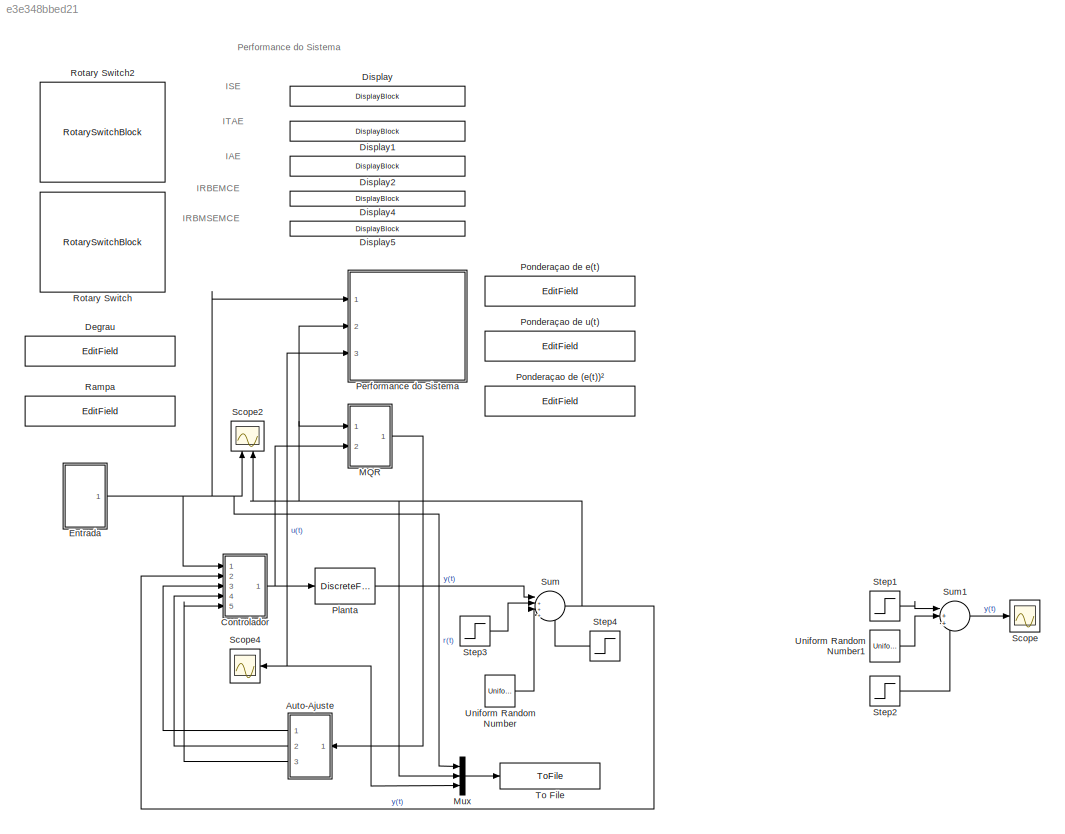
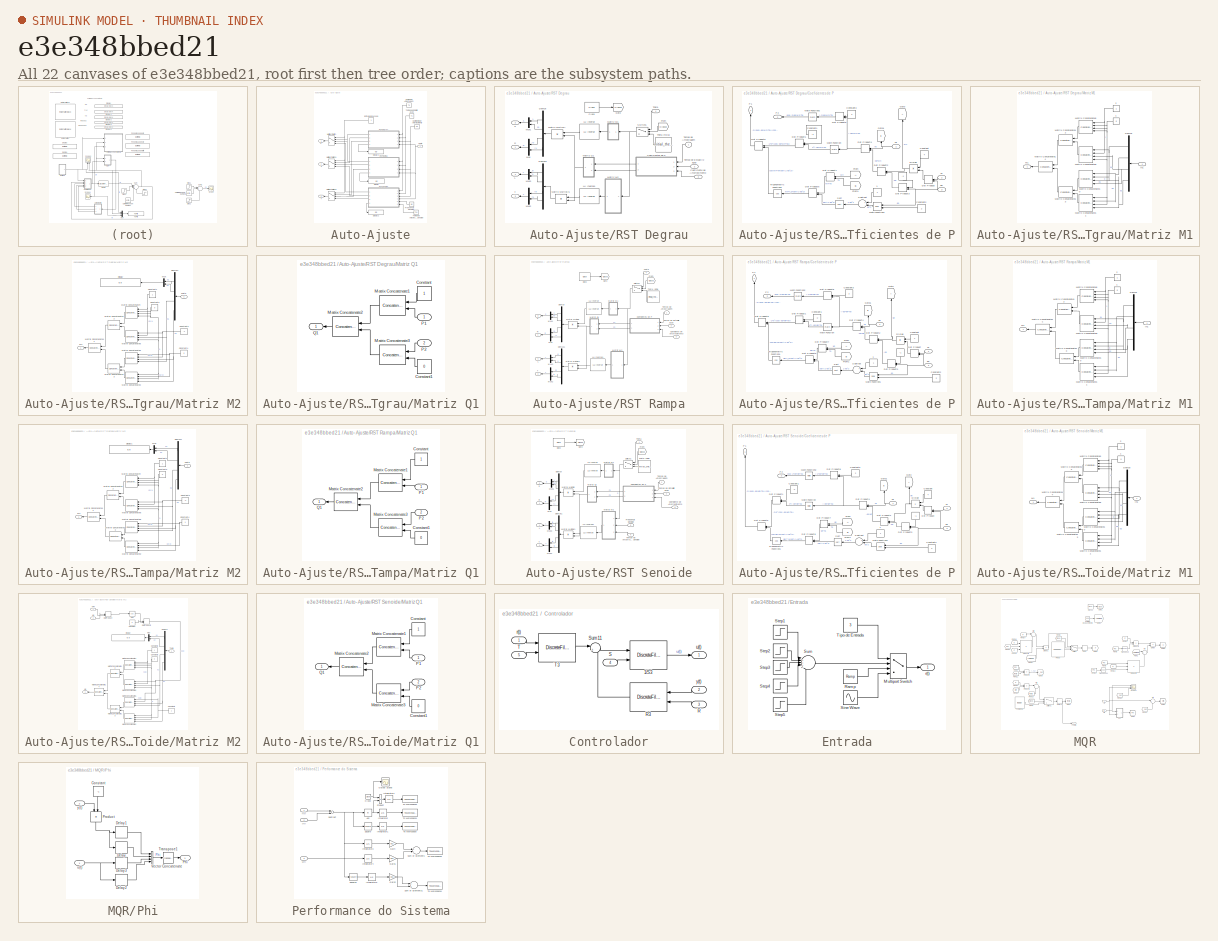
[diagram: thumbnail index - all 22 canvases of the model, root first then tree order]
MODEL slx_e3e348bbed21
KIND model
CONFIG AbsTol = auto
CONFIG EnableMultiTasking = off
CONFIG FixedStep = auto
CONFIG MaxStep = auto
CONFIG MinStep = auto
CONFIG RelTol = 1e-3
CONFIG SampleTimeConstraint = Unconstrained
CONFIG Solver = VariableStepAuto
CONFIG SolverName = VariableStepAuto
CONFIG StartTime = 0.0
CONFIG StopTime = 100
BLOCK [SubSystem] Auto-Ajuste
  Ports = [1, 3]
  RequestExecContextInheritance = off
BLOCK [Constant] Auto-Ajuste/Coeficiente de Amortecimento
  Value = ep
BLOCK [Display] Auto-Ajuste/Display
  Decimation = 1
  Ports = [1]
BLOCK [Display] Auto-Ajuste/Display1
  Decimation = 1
  Ports = [1]
BLOCK [Display] Auto-Ajuste/Display2
  Decimation = 1
  Ports = [1]
BLOCK [Constant] Auto-Ajuste/Entrada Esperada
  Value = 3
BLOCK [Constant] Auto-Ajuste/Frequencia Senoide
  Value = w0
BLOCK [MultiPortSwitch] Auto-Ajuste/Multiport Switch
  InputSameDT = off
  Ports = [4, 1]
  SaturateOnIntegerOverflow = off
BLOCK [MultiPortSwitch] Auto-Ajuste/Multiport Switch1
  InputSameDT = off
  Ports = [4, 1]
  SaturateOnIntegerOverflow = off
BLOCK [MultiPortSwitch] Auto-Ajuste/Multiport Switch2
  InputSameDT = off
  Ports = [4, 1]
  SaturateOnIntegerOverflow = off
BLOCK [Outport] Auto-Ajuste/R
  IconDisplay = Port number
BLOCK [SubSystem] Auto-Ajuste/RST Degrau
  Ports = [4, 4]
  RequestExecContextInheritance = off
BLOCK [Reference] Auto-Ajuste/RST Degrau/ LU Inverse  REF=dspinverses/ LU Inverse
  Ports = [1, 1]
  SourceBlock = dspinverses/ LU Inverse
  SourceProductBaseCode = DS
  SourceProductName = DSP System Toolbox
  SourceType = LU Inverse
BLOCK [Reference] Auto-Ajuste/RST Degrau/ LU Inverse1  REF=dspinverses/ LU Inverse
  Ports = [1, 1]
  SourceBlock = dspinverses/ LU Inverse
  SourceProductBaseCode = DS
  SourceProductName = DSP System Toolbox
  SourceType = LU Inverse
BLOCK [Clock] Auto-Ajuste/RST Degrau/Clock
  DisplayTime = on
BLOCK [Inport] Auto-Ajuste/RST Degrau/Coeficiente de Amortecimento
  IconDisplay = Port number
  Port = 3
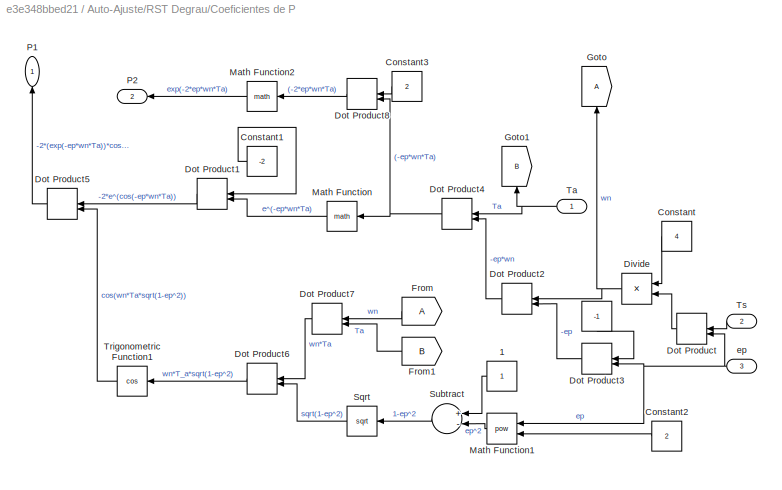
BLOCK [SubSystem] Auto-Ajuste/RST Degrau/Coeficientes de P
  Ports = [3, 2]
  RequestExecContextInheritance = off
BLOCK [Constant] Auto-Ajuste/RST Degrau/Coeficientes de P/ 
  Value = -1
BLOCK [Constant] Auto-Ajuste/RST Degrau/Coeficientes de P/1
BLOCK [Constant] Auto-Ajuste/RST Degrau/Coeficientes de P/Constant
  Value = 4
BLOCK [Constant] Auto-Ajuste/RST Degrau/Coeficientes de P/Constant1
  Value = -2
BLOCK [Constant] Auto-Ajuste/RST Degrau/Coeficientes de P/Constant2
  Value = 2
BLOCK [Constant] Auto-Ajuste/RST Degrau/Coeficientes de P/Constant3
  Value = 2
BLOCK [Product] Auto-Ajuste/RST Degrau/Coeficientes de P/Divide
  InputSameDT = off
  Inputs = */
  OutDataTypeStr = Inherit: Inherit via internal rule
  Ports = [2, 1]
  RndMeth = Floor
  SaturateOnIntegerOverflow = off
BLOCK [DotProduct] Auto-Ajuste/RST Degrau/Coeficientes de P/Dot Product
  OutDataTypeStr = Inherit: Inherit via internal rule
BLOCK [DotProduct] Auto-Ajuste/RST Degrau/Coeficientes de P/Dot Product1
  OutDataTypeStr = Inherit: Inherit via internal rule
BLOCK [DotProduct] Auto-Ajuste/RST Degrau/Coeficientes de P/Dot Product2
  OutDataTypeStr = Inherit: Inherit via internal rule
BLOCK [DotProduct] Auto-Ajuste/RST Degrau/Coeficientes de P/Dot Product3
  OutDataTypeStr = Inherit: Inherit via internal rule
BLOCK [DotProduct] Auto-Ajuste/RST Degrau/Coeficientes de P/Dot Product4
  OutDataTypeStr = Inherit: Inherit via internal rule
BLOCK [DotProduct] Auto-Ajuste/RST Degrau/Coeficientes de P/Dot Product5
  OutDataTypeStr = Inherit: Inherit via internal rule
BLOCK [DotProduct] Auto-Ajuste/RST Degrau/Coeficientes de P/Dot Product6
  OutDataTypeStr = Inherit: Inherit via internal rule
BLOCK [DotProduct] Auto-Ajuste/RST Degrau/Coeficientes de P/Dot Product7
  OutDataTypeStr = Inherit: Inherit via internal rule
BLOCK [DotProduct] Auto-Ajuste/RST Degrau/Coeficientes de P/Dot Product8
  OutDataTypeStr = Inherit: Inherit via internal rule
BLOCK [From] Auto-Ajuste/RST Degrau/Coeficientes de P/From
BLOCK [From] Auto-Ajuste/RST Degrau/Coeficientes de P/From1
  GotoTag = B
BLOCK [Goto] Auto-Ajuste/RST Degrau/Coeficientes de P/Goto
BLOCK [Goto] Auto-Ajuste/RST Degrau/Coeficientes de P/Goto1
  GotoTag = B
BLOCK [Math] Auto-Ajuste/RST Degrau/Coeficientes de P/Math Function
  Ports = [1, 1]
BLOCK [Math] Auto-Ajuste/RST Degrau/Coeficientes de P/Math Function1
  Operator = pow
  Ports = [2, 1]
BLOCK [Math] Auto-Ajuste/RST Degrau/Coeficientes de P/Math Function2
  Ports = [1, 1]
BLOCK [Outport] Auto-Ajuste/RST Degrau/Coeficientes de P/P1
  IconDisplay = Port number
BLOCK [Outport] Auto-Ajuste/RST Degrau/Coeficientes de P/P2
  IconDisplay = Port number
  Port = 2
BLOCK [Sqrt] Auto-Ajuste/RST Degrau/Coeficientes de P/Sqrt
BLOCK [Sum] Auto-Ajuste/RST Degrau/Coeficientes de P/Subtract
  InputSameDT = off
  Inputs = +-
  OutDataTypeStr = Inherit: Inherit via internal rule
  Ports = [2, 1]
  SaturateOnIntegerOverflow = off
BLOCK [Inport] Auto-Ajuste/RST Degrau/Coeficientes de P/Ta
  IconDisplay = Port number
BLOCK [Trigonometry] Auto-Ajuste/RST Degrau/Coeficientes de P/Trigonometric Function1
  Operator = cos
  Ports = [1, 1]
BLOCK [Inport] Auto-Ajuste/RST Degrau/Coeficientes de P/Ts
  IconDisplay = Port number
  Port = 2
BLOCK [Inport] Auto-Ajuste/RST Degrau/Coeficientes de P/ep
  IconDisplay = Port number
  Port = 3
BLOCK [Demux] Auto-Ajuste/RST Degrau/Demux
  DisplayOption = bar
  Ports = [1, 4]
BLOCK [Demux] Auto-Ajuste/RST Degrau/Demux1
  DisplayOption = bar
  Ports = [1, 4]
BLOCK [From] Auto-Ajuste/RST Degrau/From
  GotoTag = Clock3
BLOCK [Goto] Auto-Ajuste/RST Degrau/Goto
  GotoTag = Clock3
BLOCK [Outport] Auto-Ajuste/RST Degrau/L
  IconDisplay = Port number
  Port = 4
BLOCK [Product] Auto-Ajuste/RST Degrau/Matrix Multiply
  InputSameDT = off
  Multiplication = Matrix(*)
  OutDataTypeStr = Inherit: Inherit via internal rule
  Ports = [2, 1]
  RndMeth = Floor
  SaturateOnIntegerOverflow = off
BLOCK [Product] Auto-Ajuste/RST Degrau/Matrix Multiply1
  InputSameDT = off
  Multiplication = Matrix(*)
  OutDataTypeStr = Inherit: Inherit via internal rule
  Ports = [2, 1]
  RndMeth = Floor
  SaturateOnIntegerOverflow = off
BLOCK [SubSystem] Auto-Ajuste/RST Degrau/Matriz M1
  Ports = [1, 1]
  RequestExecContextInheritance = off
BLOCK [Constant] Auto-Ajuste/RST Degrau/Matriz M1/ 1
  Value = 0
BLOCK [Constant] Auto-Ajuste/RST Degrau/Matriz M1/2
BLOCK [Demux] Auto-Ajuste/RST Degrau/Matriz M1/Demux
  DisplayOption = bar
  Ports = [1, 4]
BLOCK [Inport] Auto-Ajuste/RST Degrau/Matriz M1/In1
  IconDisplay = Port number
BLOCK [Outport] Auto-Ajuste/RST Degrau/Matriz M1/M1
  IconDisplay = Port number
BLOCK [Concatenate] Auto-Ajuste/RST Degrau/Matriz M1/Matrix Concatenate10
  ConcatenateDimension = 2
  Mode = Multidimensional array
  NumInputs = 4
  Ports = [4, 1]
BLOCK [Concatenate] Auto-Ajuste/RST Degrau/Matriz M1/Matrix Concatenate11
  ConcatenateDimension = 2
  Mode = Multidimensional array
  NumInputs = 4
  Ports = [4, 1]
BLOCK [Concatenate] Auto-Ajuste/RST Degrau/Matriz M1/Matrix Concatenate12
  Mode = Multidimensional array
  Ports = [2, 1]
BLOCK [Concatenate] Auto-Ajuste/RST Degrau/Matriz M1/Matrix Concatenate13
  Mode = Multidimensional array
  Ports = [2, 1]
BLOCK [Concatenate] Auto-Ajuste/RST Degrau/Matriz M1/Matrix Concatenate14
  Mode = Multidimensional array
  Ports = [2, 1]
BLOCK [Concatenate] Auto-Ajuste/RST Degrau/Matriz M1/Matrix Concatenate6
  ConcatenateDimension = 2
  Mode = Multidimensional array
  NumInputs = 4
  Ports = [4, 1]
BLOCK [Concatenate] Auto-Ajuste/RST Degrau/Matriz M1/Matrix Concatenate9
  ConcatenateDimension = 2
  Mode = Multidimensional array
  NumInputs = 4
  Ports = [4, 1]
BLOCK [SubSystem] Auto-Ajuste/RST Degrau/Matriz M2
  Ports = [1, 1]
  RequestExecContextInheritance = off
BLOCK [Constant] Auto-Ajuste/RST Degrau/Matriz M2/Constant1
BLOCK [Constant] Auto-Ajuste/RST Degrau/Matriz M2/Constant2
  Value = -1
BLOCK [Constant] Auto-Ajuste/RST Degrau/Matriz M2/Constant3
  Value = 0
BLOCK [Constant] Auto-Ajuste/RST Degrau/Matriz M2/Constant4
  Value = 0
BLOCK [Demux] Auto-Ajuste/RST Degrau/Matriz M2/Demux1
  DisplayOption = bar
  Ports = [1, 4]
BLOCK [Display] Auto-Ajuste/RST Degrau/Matriz M2/Display
  Decimation = 1
  Ports = [1]
BLOCK [Outport] Auto-Ajuste/RST Degrau/Matriz M2/M2
  IconDisplay = Port number
BLOCK [Concatenate] Auto-Ajuste/RST Degrau/Matriz M2/Matrix Concatenate12
  Mode = Multidimensional array
  Ports = [2, 1]
BLOCK [Concatenate] Auto-Ajuste/RST Degrau/Matriz M2/Matrix Concatenate13
  Mode = Multidimensional array
  Ports = [2, 1]
BLOCK [Concatenate] Auto-Ajuste/RST Degrau/Matriz M2/Matrix Concatenate14
  Mode = Multidimensional array
  Ports = [2, 1]
BLOCK [Concatenate] Auto-Ajuste/RST Degrau/Matriz M2/Matrix Concatenate2
  ConcatenateDimension = 2
  Mode = Multidimensional array
  NumInputs = 4
  Ports = [4, 1]
BLOCK [Concatenate] Auto-Ajuste/RST Degrau/Matriz M2/Matrix Concatenate4
  ConcatenateDimension = 2
  Mode = Multidimensional array
  NumInputs = 4
  Ports = [4, 1]
BLOCK [Concatenate] Auto-Ajuste/RST Degrau/Matriz M2/Matrix Concatenate5
  ConcatenateDimension = 2
  Mode = Multidimensional array
  NumInputs = 4
  Ports = [4, 1]
BLOCK [Concatenate] Auto-Ajuste/RST Degrau/Matriz M2/Matrix Concatenate6
  ConcatenateDimension = 2
  Mode = Multidimensional array
  NumInputs = 4
  Ports = [4, 1]
BLOCK [Mux] Auto-Ajuste/RST Degrau/Matriz M2/Mux
  DisplayOption = bar
  Inputs = 2
  Ports = [2, 1]
BLOCK [Inport] Auto-Ajuste/RST Degrau/Matriz M2/Theta
  IconDisplay = Port number
BLOCK [SubSystem] Auto-Ajuste/RST Degrau/Matriz Q1
  Ports = [2, 1]
  RequestExecContextInheritance = off
BLOCK [Constant] Auto-Ajuste/RST Degrau/Matriz Q1/Constant
BLOCK [Constant] Auto-Ajuste/RST Degrau/Matriz Q1/Constant1
  Value = 0
BLOCK [Concatenate] Auto-Ajuste/RST Degrau/Matriz Q1/Matrix Concatenate1
  Mode = Multidimensional array
  Ports = [2, 1]
BLOCK [Concatenate] Auto-Ajuste/RST Degrau/Matriz Q1/Matrix Concatenate2
  Mode = Multidimensional array
  Ports = [2, 1]
BLOCK [Concatenate] Auto-Ajuste/RST Degrau/Matriz Q1/Matrix Concatenate3
  Mode = Multidimensional array
  Ports = [2, 1]
BLOCK [Inport] Auto-Ajuste/RST Degrau/Matriz Q1/P1
  IconDisplay = Port number
BLOCK [Inport] Auto-Ajuste/RST Degrau/Matriz Q1/P2
  IconDisplay = Port number
  Port = 2
BLOCK [Outport] Auto-Ajuste/RST Degrau/Matriz Q1/Q1
  IconDisplay = Port number
BLOCK [Mux] Auto-Ajuste/RST Degrau/Mux
  DisplayOption = bar
  Inputs = 2
  Ports = [2, 1]
BLOCK [Mux] Auto-Ajuste/RST Degrau/Mux1
  DisplayOption = bar
  Inputs = 2
  Ports = [2, 1]
BLOCK [Mux] Auto-Ajuste/RST Degrau/Mux2
  DisplayOption = bar
  Inputs = 2
  Ports = [2, 1]
BLOCK [Mux] Auto-Ajuste/RST Degrau/Mux3
  DisplayOption = bar
  Inputs = 2
  Ports = [2, 1]
BLOCK [Outport] Auto-Ajuste/RST Degrau/R
  IconDisplay = Port number
BLOCK [Outport] Auto-Ajuste/RST Degrau/S
  IconDisplay = Port number
  Port = 2
BLOCK [Switch] Auto-Ajuste/RST Degrau/Switch1
  Criteria = u2 > Threshold
  InputSameDT = off
  SaturateOnIntegerOverflow = off
  Threshold = theta_switch_time
BLOCK [Outport] Auto-Ajuste/RST Degrau/T
  IconDisplay = Port number
  Port = 3
BLOCK [Inport] Auto-Ajuste/RST Degrau/Tempo de Amostragem
  IconDisplay = Port number
BLOCK [Inport] Auto-Ajuste/RST Degrau/Tempo de Estabilizaçao
  IconDisplay = Port number
  Port = 2
BLOCK [Inport] Auto-Ajuste/RST Degrau/Theta
  IconDisplay = Port number
  Port = 4
BLOCK [Constant] Auto-Ajuste/RST Degrau/Theta Inicial
  Value = initial_theta
BLOCK [SubSystem] Auto-Ajuste/RST Rampa
  Ports = [4, 4]
  RequestExecContextInheritance = off
BLOCK [Reference] Auto-Ajuste/RST Rampa/ LU Inverse  REF=dspinverses/ LU Inverse
  Ports = [1, 1]
  SourceBlock = dspinverses/ LU Inverse
  SourceProductBaseCode = DS
  SourceProductName = DSP System Toolbox
  SourceType = LU Inverse
BLOCK [Reference] Auto-Ajuste/RST Rampa/ LU Inverse1  REF=dspinverses/ LU Inverse
  Ports = [1, 1]
  SourceBlock = dspinverses/ LU Inverse
  SourceProductBaseCode = DS
  SourceProductName = DSP System Toolbox
  SourceType = LU Inverse
BLOCK [Clock] Auto-Ajuste/RST Rampa/Clock
  DisplayTime = on
BLOCK [Inport] Auto-Ajuste/RST Rampa/Coeficiente de Amortecimento
  IconDisplay = Port number
  Port = 3
BLOCK [SubSystem] Auto-Ajuste/RST Rampa/Coeficientes de P
  Ports = [3, 2]
  RequestExecContextInheritance = off
BLOCK [Constant] Auto-Ajuste/RST Rampa/Coeficientes de P/ 
  Value = -1
BLOCK [Constant] Auto-Ajuste/RST Rampa/Coeficientes de P/1
BLOCK [Constant] Auto-Ajuste/RST Rampa/Coeficientes de P/Constant
  Value = 4
BLOCK [Constant] Auto-Ajuste/RST Rampa/Coeficientes de P/Constant1
  Value = -2
BLOCK [Constant] Auto-Ajuste/RST Rampa/Coeficientes de P/Constant2
  Value = 2
BLOCK [Constant] Auto-Ajuste/RST Rampa/Coeficientes de P/Constant3
  Value = 2
BLOCK [Product] Auto-Ajuste/RST Rampa/Coeficientes de P/Divide
  InputSameDT = off
  Inputs = */
  OutDataTypeStr = Inherit: Inherit via internal rule
  Ports = [2, 1]
  RndMeth = Floor
  SaturateOnIntegerOverflow = off
BLOCK [DotProduct] Auto-Ajuste/RST Rampa/Coeficientes de P/Dot Product
  OutDataTypeStr = Inherit: Inherit via internal rule
BLOCK [DotProduct] Auto-Ajuste/RST Rampa/Coeficientes de P/Dot Product1
  OutDataTypeStr = Inherit: Inherit via internal rule
BLOCK [DotProduct] Auto-Ajuste/RST Rampa/Coeficientes de P/Dot Product2
  OutDataTypeStr = Inherit: Inherit via internal rule
BLOCK [DotProduct] Auto-Ajuste/RST Rampa/Coeficientes de P/Dot Product3
  OutDataTypeStr = Inherit: Inherit via internal rule
BLOCK [DotProduct] Auto-Ajuste/RST Rampa/Coeficientes de P/Dot Product4
  OutDataTypeStr = Inherit: Inherit via internal rule
BLOCK [DotProduct] Auto-Ajuste/RST Rampa/Coeficientes de P/Dot Product5
  OutDataTypeStr = Inherit: Inherit via internal rule
BLOCK [DotProduct] Auto-Ajuste/RST Rampa/Coeficientes de P/Dot Product6
  OutDataTypeStr = Inherit: Inherit via internal rule
BLOCK [DotProduct] Auto-Ajuste/RST Rampa/Coeficientes de P/Dot Product7
  OutDataTypeStr = Inherit: Inherit via internal rule
BLOCK [DotProduct] Auto-Ajuste/RST Rampa/Coeficientes de P/Dot Product8
  OutDataTypeStr = Inherit: Inherit via internal rule
BLOCK [From] Auto-Ajuste/RST Rampa/Coeficientes de P/From
BLOCK [From] Auto-Ajuste/RST Rampa/Coeficientes de P/From1
  GotoTag = B
BLOCK [Goto] Auto-Ajuste/RST Rampa/Coeficientes de P/Goto
BLOCK [Goto] Auto-Ajuste/RST Rampa/Coeficientes de P/Goto1
  GotoTag = B
BLOCK [Math] Auto-Ajuste/RST Rampa/Coeficientes de P/Math Function
  Ports = [1, 1]
BLOCK [Math] Auto-Ajuste/RST Rampa/Coeficientes de P/Math Function1
  Operator = pow
  Ports = [2, 1]
BLOCK [Math] Auto-Ajuste/RST Rampa/Coeficientes de P/Math Function2
  Ports = [1, 1]
BLOCK [Outport] Auto-Ajuste/RST Rampa/Coeficientes de P/P1
  IconDisplay = Port number
BLOCK [Outport] Auto-Ajuste/RST Rampa/Coeficientes de P/P2
  IconDisplay = Port number
  Port = 2
BLOCK [Sqrt] Auto-Ajuste/RST Rampa/Coeficientes de P/Sqrt
BLOCK [Sum] Auto-Ajuste/RST Rampa/Coeficientes de P/Subtract
  InputSameDT = off
  Inputs = +-
  OutDataTypeStr = Inherit: Inherit via internal rule
  Ports = [2, 1]
  SaturateOnIntegerOverflow = off
BLOCK [Inport] Auto-Ajuste/RST Rampa/Coeficientes de P/Ta
  IconDisplay = Port number
BLOCK [Trigonometry] Auto-Ajuste/RST Rampa/Coeficientes de P/Trigonometric Function1
  Operator = cos
  Ports = [1, 1]
BLOCK [Inport] Auto-Ajuste/RST Rampa/Coeficientes de P/Ts
  IconDisplay = Port number
  Port = 2
BLOCK [Inport] Auto-Ajuste/RST Rampa/Coeficientes de P/ep
  IconDisplay = Port number
  Port = 3
BLOCK [Demux] Auto-Ajuste/RST Rampa/Demux
  DisplayOption = bar
  Ports = [1, 4]
BLOCK [Demux] Auto-Ajuste/RST Rampa/Demux1
  DisplayOption = bar
  Ports = [1, 4]
BLOCK [From] Auto-Ajuste/RST Rampa/From
  GotoTag = Clock3
BLOCK [Goto] Auto-Ajuste/RST Rampa/Goto
  GotoTag = Clock3
BLOCK [Outport] Auto-Ajuste/RST Rampa/L
  IconDisplay = Port number
  Port = 4
BLOCK [Product] Auto-Ajuste/RST Rampa/Matrix Multiply
  InputSameDT = off
  Multiplication = Matrix(*)
  OutDataTypeStr = Inherit: Inherit via internal rule
  Ports = [2, 1]
  RndMeth = Floor
  SaturateOnIntegerOverflow = off
BLOCK [Product] Auto-Ajuste/RST Rampa/Matrix Multiply1
  InputSameDT = off
  Multiplication = Matrix(*)
  OutDataTypeStr = Inherit: Inherit via internal rule
  Ports = [2, 1]
  RndMeth = Floor
  SaturateOnIntegerOverflow = off
BLOCK [SubSystem] Auto-Ajuste/RST Rampa/Matriz M1
  Ports = [1, 1]
  RequestExecContextInheritance = off
BLOCK [Constant] Auto-Ajuste/RST Rampa/Matriz M1/ 1
  Value = 0
BLOCK [Constant] Auto-Ajuste/RST Rampa/Matriz M1/2
BLOCK [Demux] Auto-Ajuste/RST Rampa/Matriz M1/Demux
  DisplayOption = bar
  Ports = [1, 4]
BLOCK [Inport] Auto-Ajuste/RST Rampa/Matriz M1/In1
  IconDisplay = Port number
BLOCK [Outport] Auto-Ajuste/RST Rampa/Matriz M1/M1
  IconDisplay = Port number
BLOCK [Concatenate] Auto-Ajuste/RST Rampa/Matriz M1/Matrix Concatenate10
  ConcatenateDimension = 2
  Mode = Multidimensional array
  NumInputs = 4
  Ports = [4, 1]
BLOCK [Concatenate] Auto-Ajuste/RST Rampa/Matriz M1/Matrix Concatenate11
  ConcatenateDimension = 2
  Mode = Multidimensional array
  NumInputs = 4
  Ports = [4, 1]
BLOCK [Concatenate] Auto-Ajuste/RST Rampa/Matriz M1/Matrix Concatenate12
  Mode = Multidimensional array
  Ports = [2, 1]
BLOCK [Concatenate] Auto-Ajuste/RST Rampa/Matriz M1/Matrix Concatenate13
  Mode = Multidimensional array
  Ports = [2, 1]
BLOCK [Concatenate] Auto-Ajuste/RST Rampa/Matriz M1/Matrix Concatenate14
  Mode = Multidimensional array
  Ports = [2, 1]
BLOCK [Concatenate] Auto-Ajuste/RST Rampa/Matriz M1/Matrix Concatenate6
  ConcatenateDimension = 2
  Mode = Multidimensional array
  NumInputs = 4
  Ports = [4, 1]
BLOCK [Concatenate] Auto-Ajuste/RST Rampa/Matriz M1/Matrix Concatenate9
  ConcatenateDimension = 2
  Mode = Multidimensional array
  NumInputs = 4
  Ports = [4, 1]
BLOCK [SubSystem] Auto-Ajuste/RST Rampa/Matriz M2
  Ports = [1, 1]
  RequestExecContextInheritance = off
BLOCK [Constant] Auto-Ajuste/RST Rampa/Matriz M2/Constant1
BLOCK [Constant] Auto-Ajuste/RST Rampa/Matriz M2/Constant2
  Value = -2
BLOCK [Constant] Auto-Ajuste/RST Rampa/Matriz M2/Constant3
  Value = 0
BLOCK [Constant] Auto-Ajuste/RST Rampa/Matriz M2/Constant4
BLOCK [Demux] Auto-Ajuste/RST Rampa/Matriz M2/Demux1
  DisplayOption = bar
  Ports = [1, 4]
BLOCK [Display] Auto-Ajuste/RST Rampa/Matriz M2/Display1
  Decimation = 1
  Ports = [1]
BLOCK [Outport] Auto-Ajuste/RST Rampa/Matriz M2/M2
  IconDisplay = Port number
BLOCK [Concatenate] Auto-Ajuste/RST Rampa/Matriz M2/Matrix Concatenate12
  Mode = Multidimensional array
  Ports = [2, 1]
BLOCK [Concatenate] Auto-Ajuste/RST Rampa/Matriz M2/Matrix Concatenate13
  Mode = Multidimensional array
  Ports = [2, 1]
BLOCK [Concatenate] Auto-Ajuste/RST Rampa/Matriz M2/Matrix Concatenate14
  Mode = Multidimensional array
  Ports = [2, 1]
BLOCK [Concatenate] Auto-Ajuste/RST Rampa/Matriz M2/Matrix Concatenate2
  ConcatenateDimension = 2
  Mode = Multidimensional array
  NumInputs = 4
  Ports = [4, 1]
BLOCK [Concatenate] Auto-Ajuste/RST Rampa/Matriz M2/Matrix Concatenate4
  ConcatenateDimension = 2
  Mode = Multidimensional array
  NumInputs = 4
  Ports = [4, 1]
BLOCK [Concatenate] Auto-Ajuste/RST Rampa/Matriz M2/Matrix Concatenate5
  ConcatenateDimension = 2
  Mode = Multidimensional array
  NumInputs = 4
  Ports = [4, 1]
BLOCK [Concatenate] Auto-Ajuste/RST Rampa/Matriz M2/Matrix Concatenate6
  ConcatenateDimension = 2
  Mode = Multidimensional array
  NumInputs = 4
  Ports = [4, 1]
BLOCK [Mux] Auto-Ajuste/RST Rampa/Matriz M2/Mux
  DisplayOption = bar
  Inputs = 2
  Ports = [2, 1]
BLOCK [Inport] Auto-Ajuste/RST Rampa/Matriz M2/Theta
  IconDisplay = Port number
BLOCK [SubSystem] Auto-Ajuste/RST Rampa/Matriz Q1
  Ports = [2, 1]
  RequestExecContextInheritance = off
BLOCK [Constant] Auto-Ajuste/RST Rampa/Matriz Q1/Constant
BLOCK [Constant] Auto-Ajuste/RST Rampa/Matriz Q1/Constant1
  Value = 0
BLOCK [Concatenate] Auto-Ajuste/RST Rampa/Matriz Q1/Matrix Concatenate1
  Mode = Multidimensional array
  Ports = [2, 1]
BLOCK [Concatenate] Auto-Ajuste/RST Rampa/Matriz Q1/Matrix Concatenate2
  Mode = Multidimensional array
  Ports = [2, 1]
BLOCK [Concatenate] Auto-Ajuste/RST Rampa/Matriz Q1/Matrix Concatenate3
  Mode = Multidimensional array
  Ports = [2, 1]
BLOCK [Inport] Auto-Ajuste/RST Rampa/Matriz Q1/P1
  IconDisplay = Port number
BLOCK [Inport] Auto-Ajuste/RST Rampa/Matriz Q1/P2
  IconDisplay = Port number
  Port = 2
BLOCK [Outport] Auto-Ajuste/RST Rampa/Matriz Q1/Q1
  IconDisplay = Port number
BLOCK [Mux] Auto-Ajuste/RST Rampa/Mux
  DisplayOption = bar
  Inputs = 2
  Ports = [2, 1]
BLOCK [Mux] Auto-Ajuste/RST Rampa/Mux1
  DisplayOption = bar
  Inputs = 2
  Ports = [2, 1]
BLOCK [Mux] Auto-Ajuste/RST Rampa/Mux2
  DisplayOption = bar
  Inputs = 2
  Ports = [2, 1]
BLOCK [Mux] Auto-Ajuste/RST Rampa/Mux3
  DisplayOption = bar
  Inputs = 2
  Ports = [2, 1]
BLOCK [Outport] Auto-Ajuste/RST Rampa/R
  IconDisplay = Port number
BLOCK [Outport] Auto-Ajuste/RST Rampa/S
  IconDisplay = Port number
  Port = 2
BLOCK [Switch] Auto-Ajuste/RST Rampa/Switch1
  Criteria = u2 > Threshold
  InputSameDT = off
  SaturateOnIntegerOverflow = off
  Threshold = theta_switch_time
BLOCK [Outport] Auto-Ajuste/RST Rampa/T
  IconDisplay = Port number
  Port = 3
BLOCK [Inport] Auto-Ajuste/RST Rampa/Tempo de Amostragem
  IconDisplay = Port number
BLOCK [Inport] Auto-Ajuste/RST Rampa/Tempo de Estabilizaçao
  IconDisplay = Port number
  Port = 2
BLOCK [Inport] Auto-Ajuste/RST Rampa/Theta
  IconDisplay = Port number
  Port = 4
BLOCK [Constant] Auto-Ajuste/RST Rampa/Theta Inicial
  Value = initial_theta
BLOCK [SubSystem] Auto-Ajuste/RST Senoide
  Ports = [6, 4]
  RequestExecContextInheritance = off
BLOCK [Reference] Auto-Ajuste/RST Senoide/ LU Inverse  REF=dspinverses/ LU Inverse
  Ports = [1, 1]
  SourceBlock = dspinverses/ LU Inverse
  SourceProductBaseCode = DS
  SourceProductName = DSP System Toolbox
  SourceType = LU Inverse
BLOCK [Reference] Auto-Ajuste/RST Senoide/ LU Inverse1  REF=dspinverses/ LU Inverse
  Ports = [1, 1]
  SourceBlock = dspinverses/ LU Inverse
  SourceProductBaseCode = DS
  SourceProductName = DSP System Toolbox
  SourceType = LU Inverse
BLOCK [Clock] Auto-Ajuste/RST Senoide/Clock
  DisplayTime = on
BLOCK [Inport] Auto-Ajuste/RST Senoide/Coeficiente de Amortecimento
  IconDisplay = Port number
  Port = 3
BLOCK [SubSystem] Auto-Ajuste/RST Senoide/Coeficientes de P
  Ports = [3, 2]
  RequestExecContextInheritance = off
BLOCK [Constant] Auto-Ajuste/RST Senoide/Coeficientes de P/ 
  Value = -1
BLOCK [Constant] Auto-Ajuste/RST Senoide/Coeficientes de P/1
BLOCK [Constant] Auto-Ajuste/RST Senoide/Coeficientes de P/Constant
  Value = 4
BLOCK [Constant] Auto-Ajuste/RST Senoide/Coeficientes de P/Constant1
  Value = -2
BLOCK [Constant] Auto-Ajuste/RST Senoide/Coeficientes de P/Constant2
  Value = 2
BLOCK [Constant] Auto-Ajuste/RST Senoide/Coeficientes de P/Constant3
  Value = 2
BLOCK [Product] Auto-Ajuste/RST Senoide/Coeficientes de P/Divide
  InputSameDT = off
  Inputs = */
  OutDataTypeStr = Inherit: Inherit via internal rule
  Ports = [2, 1]
  RndMeth = Floor
  SaturateOnIntegerOverflow = off
BLOCK [DotProduct] Auto-Ajuste/RST Senoide/Coeficientes de P/Dot Product
  OutDataTypeStr = Inherit: Inherit via internal rule
BLOCK [DotProduct] Auto-Ajuste/RST Senoide/Coeficientes de P/Dot Product1
  OutDataTypeStr = Inherit: Inherit via internal rule
BLOCK [DotProduct] Auto-Ajuste/RST Senoide/Coeficientes de P/Dot Product2
  OutDataTypeStr = Inherit: Inherit via internal rule
BLOCK [DotProduct] Auto-Ajuste/RST Senoide/Coeficientes de P/Dot Product3
  OutDataTypeStr = Inherit: Inherit via internal rule
BLOCK [DotProduct] Auto-Ajuste/RST Senoide/Coeficientes de P/Dot Product4
  OutDataTypeStr = Inherit: Inherit via internal rule
BLOCK [DotProduct] Auto-Ajuste/RST Senoide/Coeficientes de P/Dot Product5
  OutDataTypeStr = Inherit: Inherit via internal rule
BLOCK [DotProduct] Auto-Ajuste/RST Senoide/Coeficientes de P/Dot Product6
  OutDataTypeStr = Inherit: Inherit via internal rule
BLOCK [DotProduct] Auto-Ajuste/RST Senoide/Coeficientes de P/Dot Product7
  OutDataTypeStr = Inherit: Inherit via internal rule
BLOCK [DotProduct] Auto-Ajuste/RST Senoide/Coeficientes de P/Dot Product8
  OutDataTypeStr = Inherit: Inherit via internal rule
BLOCK [From] Auto-Ajuste/RST Senoide/Coeficientes de P/From
BLOCK [From] Auto-Ajuste/RST Senoide/Coeficientes de P/From1
  GotoTag = B
BLOCK [Goto] Auto-Ajuste/RST Senoide/Coeficientes de P/Goto
BLOCK [Goto] Auto-Ajuste/RST Senoide/Coeficientes de P/Goto1
  GotoTag = B
BLOCK [Math] Auto-Ajuste/RST Senoide/Coeficientes de P/Math Function
  Ports = [1, 1]
BLOCK [Math] Auto-Ajuste/RST Senoide/Coeficientes de P/Math Function1
  Operator = pow
  Ports = [2, 1]
BLOCK [Math] Auto-Ajuste/RST Senoide/Coeficientes de P/Math Function2
  Ports = [1, 1]
BLOCK [Outport] Auto-Ajuste/RST Senoide/Coeficientes de P/P1
  IconDisplay = Port number
BLOCK [Outport] Auto-Ajuste/RST Senoide/Coeficientes de P/P2
  IconDisplay = Port number
  Port = 2
BLOCK [Sqrt] Auto-Ajuste/RST Senoide/Coeficientes de P/Sqrt
BLOCK [Sum] Auto-Ajuste/RST Senoide/Coeficientes de P/Subtract
  InputSameDT = off
  Inputs = +-
  OutDataTypeStr = Inherit: Inherit via internal rule
  Ports = [2, 1]
  SaturateOnIntegerOverflow = off
BLOCK [Inport] Auto-Ajuste/RST Senoide/Coeficientes de P/Ta
  IconDisplay = Port number
BLOCK [Trigonometry] Auto-Ajuste/RST Senoide/Coeficientes de P/Trigonometric Function1
  Operator = cos
  Ports = [1, 1]
BLOCK [Inport] Auto-Ajuste/RST Senoide/Coeficientes de P/Ts
  IconDisplay = Port number
  Port = 2
BLOCK [Inport] Auto-Ajuste/RST Senoide/Coeficientes de P/ep
  IconDisplay = Port number
  Port = 3
BLOCK [Demux] Auto-Ajuste/RST Senoide/Demux
  DisplayOption = bar
  Ports = [1, 4]
BLOCK [Demux] Auto-Ajuste/RST Senoide/Demux1
  DisplayOption = bar
  Ports = [1, 4]
BLOCK [Inport] Auto-Ajuste/RST Senoide/Frequencia Senoide
  IconDisplay = Port number
  Port = 5
BLOCK [From] Auto-Ajuste/RST Senoide/From
  GotoTag = Clock3
BLOCK [Goto] Auto-Ajuste/RST Senoide/Goto
  GotoTag = Clock3
BLOCK [Outport] Auto-Ajuste/RST Senoide/L
  IconDisplay = Port number
  Port = 4
BLOCK [Product] Auto-Ajuste/RST Senoide/Matrix Multiply
  InputSameDT = off
  Multiplication = Matrix(*)
  OutDataTypeStr = Inherit: Inherit via internal rule
  Ports = [2, 1]
  RndMeth = Floor
  SaturateOnIntegerOverflow = off
BLOCK [Product] Auto-Ajuste/RST Senoide/Matrix Multiply1
  InputSameDT = off
  Multiplication = Matrix(*)
  OutDataTypeStr = Inherit: Inherit via internal rule
  Ports = [2, 1]
  RndMeth = Floor
  SaturateOnIntegerOverflow = off
BLOCK [SubSystem] Auto-Ajuste/RST Senoide/Matriz M1
  Ports = [1, 1]
  RequestExecContextInheritance = off
BLOCK [Constant] Auto-Ajuste/RST Senoide/Matriz M1/ 1
  Value = 0
BLOCK [Constant] Auto-Ajuste/RST Senoide/Matriz M1/2
BLOCK [Demux] Auto-Ajuste/RST Senoide/Matriz M1/Demux
  DisplayOption = bar
  Ports = [1, 4]
BLOCK [Inport] Auto-Ajuste/RST Senoide/Matriz M1/In1
  IconDisplay = Port number
BLOCK [Outport] Auto-Ajuste/RST Senoide/Matriz M1/M1
  IconDisplay = Port number
BLOCK [Concatenate] Auto-Ajuste/RST Senoide/Matriz M1/Matrix Concatenate10
  ConcatenateDimension = 2
  Mode = Multidimensional array
  NumInputs = 4
  Ports = [4, 1]
BLOCK [Concatenate] Auto-Ajuste/RST Senoide/Matriz M1/Matrix Concatenate11
  ConcatenateDimension = 2
  Mode = Multidimensional array
  NumInputs = 4
  Ports = [4, 1]
BLOCK [Concatenate] Auto-Ajuste/RST Senoide/Matriz M1/Matrix Concatenate12
  Mode = Multidimensional array
  Ports = [2, 1]
BLOCK [Concatenate] Auto-Ajuste/RST Senoide/Matriz M1/Matrix Concatenate13
  Mode = Multidimensional array
  Ports = [2, 1]
BLOCK [Concatenate] Auto-Ajuste/RST Senoide/Matriz M1/Matrix Concatenate14
  Mode = Multidimensional array
  Ports = [2, 1]
BLOCK [Concatenate] Auto-Ajuste/RST Senoide/Matriz M1/Matrix Concatenate6
  ConcatenateDimension = 2
  Mode = Multidimensional array
  NumInputs = 4
  Ports = [4, 1]
BLOCK [Concatenate] Auto-Ajuste/RST Senoide/Matriz M1/Matrix Concatenate9
  ConcatenateDimension = 2
  Mode = Multidimensional array
  NumInputs = 4
  Ports = [4, 1]
BLOCK [SubSystem] Auto-Ajuste/RST Senoide/Matriz M2
  Ports = [3, 1]
  RequestExecContextInheritance = off
BLOCK [Constant] Auto-Ajuste/RST Senoide/Matriz M2/Constant
  Value = -2
BLOCK [Constant] Auto-Ajuste/RST Senoide/Matriz M2/Constant1
BLOCK [Constant] Auto-Ajuste/RST Senoide/Matriz M2/Constant3
  Value = 0
BLOCK [Constant] Auto-Ajuste/RST Senoide/Matriz M2/Constant4
BLOCK [Trigonometry] Auto-Ajuste/RST Senoide/Matriz M2/Cos
  Operator = cos
  Ports = [1, 1]
BLOCK [Demux] Auto-Ajuste/RST Senoide/Matriz M2/Demux1
  DisplayOption = bar
  Ports = [1, 4]
BLOCK [Display] Auto-Ajuste/RST Senoide/Matriz M2/Display
  Decimation = 1
  Ports = [1]
BLOCK [DotProduct] Auto-Ajuste/RST Senoide/Matriz M2/Dot Product
  OutDataTypeStr = Inherit: Inherit via internal rule
BLOCK [DotProduct] Auto-Ajuste/RST Senoide/Matriz M2/Dot Product1
  OutDataTypeStr = Inherit: Inherit via internal rule
BLOCK [Outport] Auto-Ajuste/RST Senoide/Matriz M2/M2
  IconDisplay = Port number
BLOCK [Concatenate] Auto-Ajuste/RST Senoide/Matriz M2/Matrix Concatenate12
  Mode = Multidimensional array
  Ports = [2, 1]
BLOCK [Concatenate] Auto-Ajuste/RST Senoide/Matriz M2/Matrix Concatenate13
  Mode = Multidimensional array
  Ports = [2, 1]
BLOCK [Concatenate] Auto-Ajuste/RST Senoide/Matriz M2/Matrix Concatenate14
  Mode = Multidimensional array
  Ports = [2, 1]
BLOCK [Concatenate] Auto-Ajuste/RST Senoide/Matriz M2/Matrix Concatenate2
  ConcatenateDimension = 2
  Mode = Multidimensional array
  NumInputs = 4
  Ports = [4, 1]
BLOCK [Concatenate] Auto-Ajuste/RST Senoide/Matriz M2/Matrix Concatenate4
  ConcatenateDimension = 2
  Mode = Multidimensional array
  NumInputs = 4
  Ports = [4, 1]
BLOCK [Concatenate] Auto-Ajuste/RST Senoide/Matriz M2/Matrix Concatenate5
  ConcatenateDimension = 2
  Mode = Multidimensional array
  NumInputs = 4
  Ports = [4, 1]
BLOCK [Concatenate] Auto-Ajuste/RST Senoide/Matriz M2/Matrix Concatenate6
  ConcatenateDimension = 2
  Mode = Multidimensional array
  NumInputs = 4
  Ports = [4, 1]
BLOCK [Mux] Auto-Ajuste/RST Senoide/Matriz M2/Mux
  DisplayOption = bar
  Inputs = 2
  Ports = [2, 1]
BLOCK [Inport] Auto-Ajuste/RST Senoide/Matriz M2/Tas
  IconDisplay = Port number
  Port = 3
BLOCK [Inport] Auto-Ajuste/RST Senoide/Matriz M2/Theta
  IconDisplay = Port number
BLOCK [Inport] Auto-Ajuste/RST Senoide/Matriz M2/w0
  IconDisplay = Port number
  Port = 2
BLOCK [SubSystem] Auto-Ajuste/RST Senoide/Matriz Q1
  Ports = [2, 1]
  RequestExecContextInheritance = off
BLOCK [Constant] Auto-Ajuste/RST Senoide/Matriz Q1/Constant
BLOCK [Constant] Auto-Ajuste/RST Senoide/Matriz Q1/Constant1
  Value = 0
BLOCK [Concatenate] Auto-Ajuste/RST Senoide/Matriz Q1/Matrix Concatenate1
  Mode = Multidimensional array
  Ports = [2, 1]
BLOCK [Concatenate] Auto-Ajuste/RST Senoide/Matriz Q1/Matrix Concatenate2
  Mode = Multidimensional array
  Ports = [2, 1]
BLOCK [Concatenate] Auto-Ajuste/RST Senoide/Matriz Q1/Matrix Concatenate3
  Mode = Multidimensional array
  Ports = [2, 1]
BLOCK [Inport] Auto-Ajuste/RST Senoide/Matriz Q1/P1
  IconDisplay = Port number
BLOCK [Inport] Auto-Ajuste/RST Senoide/Matriz Q1/P2
  IconDisplay = Port number
  Port = 2
BLOCK [Outport] Auto-Ajuste/RST Senoide/Matriz Q1/Q1
  IconDisplay = Port number
BLOCK [Mux] Auto-Ajuste/RST Senoide/Mux
  DisplayOption = bar
  Inputs = 2
  Ports = [2, 1]
BLOCK [Mux] Auto-Ajuste/RST Senoide/Mux1
  DisplayOption = bar
  Inputs = 2
  Ports = [2, 1]
BLOCK [Mux] Auto-Ajuste/RST Senoide/Mux2
  DisplayOption = bar
  Inputs = 2
  Ports = [2, 1]
BLOCK [Mux] Auto-Ajuste/RST Senoide/Mux3
  DisplayOption = bar
  Inputs = 2
  Ports = [2, 1]
BLOCK [Outport] Auto-Ajuste/RST Senoide/R
  IconDisplay = Port number
BLOCK [Outport] Auto-Ajuste/RST Senoide/S
  IconDisplay = Port number
  Port = 2
BLOCK [Switch] Auto-Ajuste/RST Senoide/Switch1
  Criteria = u2 > Threshold
  InputSameDT = off
  SaturateOnIntegerOverflow = off
  Threshold = theta_switch_time
BLOCK [Outport] Auto-Ajuste/RST Senoide/T
  IconDisplay = Port number
  Port = 3
BLOCK [Inport] Auto-Ajuste/RST Senoide/Tempo de Amostragem
  IconDisplay = Port number
BLOCK [Inport] Auto-Ajuste/RST Senoide/Tempo de Amostragem Senoide
  IconDisplay = Port number
  Port = 6
BLOCK [Inport] Auto-Ajuste/RST Senoide/Tempo de Estabilizaçao
  IconDisplay = Port number
  Port = 2
BLOCK [Inport] Auto-Ajuste/RST Senoide/Theta
  IconDisplay = Port number
  Port = 4
BLOCK [Constant] Auto-Ajuste/RST Senoide/Theta Inicial
  Value = initial_theta
BLOCK [Outport] Auto-Ajuste/S
  IconDisplay = Port number
  Port = 2
BLOCK [Outport] Auto-Ajuste/T
  IconDisplay = Port number
  Port = 3
BLOCK [Constant] Auto-Ajuste/Tempo de Amostragem
  Value = Ta
BLOCK [Constant] Auto-Ajuste/Tempo de Amostragem Senoide
  Value = Tas
BLOCK [Constant] Auto-Ajuste/Tempo de Estabilizaçao
  Value = Ts
BLOCK [Inport] Auto-Ajuste/Theta
  IconDisplay = Port number
BLOCK [SubSystem] Controlador
  Ports = [5, 1]
  RequestExecContextInheritance = off
BLOCK [DiscreteFilter] Controlador/1//S3
  Denominator = 1
  DenominatorSource = Input port
  InputPortMap = u0,p3
  Numerator = 1
  Ports = [2, 1]
  SampleTime = Ta
  a0EqualsOne = on
BLOCK [Inport] Controlador/R
  IconDisplay = Port number
  Port = 3
BLOCK [DiscreteFilter] Controlador/R3
  Denominator = 1
  InputPortMap = u0,p1
  Numerator = [-620.2 131.3]
  NumeratorSource = Input port
  Ports = [2, 1]
  SampleTime = Ta
BLOCK [Inport] Controlador/S
  IconDisplay = Port number
  Port = 4
BLOCK [Sum] Controlador/Sum11
  IconShape = round
  InputSameDT = off
  Inputs = |+-
  OutDataTypeStr = Inherit: Inherit via internal rule
  Ports = [2, 1]
  SaturateOnIntegerOverflow = off
BLOCK [Inport] Controlador/T
  IconDisplay = Port number
  Port = 5
BLOCK [DiscreteFilter] Controlador/T3
  Denominator = 1
  InputPortMap = u0,p1
  Numerator = 13.39
  NumeratorSource = Input port
  Ports = [2, 1]
  SampleTime = Ta
BLOCK [Inport] Controlador/r(t)
  IconDisplay = Port number
BLOCK [Outport] Controlador/u(t)
  IconDisplay = Port number
BLOCK [Inport] Controlador/y(t)
  IconDisplay = Port number
  Port = 2
BLOCK [EditField] Degrau
  Alignment = Center
  LabelPosition = Hide
  ShowInitialText = on
  WebBlockId = 1122
BLOCK [DisplayBlock] Display
  LabelPosition = Hide
  WebBlockId = 1210
BLOCK [DisplayBlock] Display1
  LabelPosition = Hide
  WebBlockId = 1211
BLOCK [DisplayBlock] Display2
  LabelPosition = Hide
  WebBlockId = 1212
BLOCK [DisplayBlock] Display4
  LabelPosition = Hide
  WebBlockId = 1214
BLOCK [DisplayBlock] Display5
  LabelPosition = Hide
  WebBlockId = 1215
BLOCK [SubSystem] Entrada
  Ports = [0, 1]
  RequestExecContextInheritance = off
BLOCK [MultiPortSwitch] Entrada/Multiport Switch
  InputSameDT = off
  Ports = [4, 1]
  SaturateOnIntegerOverflow = off
BLOCK [Reference] Entrada/Ramp  REF=simulink/Sources/Ramp
  Ports = [0, 1]
  SourceBlock = simulink/Sources/Ramp
  SourceProductBaseCode = SL
  SourceProductName = Simulink
  SourceType = Ramp
BLOCK [Sin] Entrada/Sine Wave
  Frequency = w0
  Ports = [0, 1]
  SampleTime = Tas
BLOCK [Step] Entrada/Step1
  SampleTime = 0
  Time = 0
BLOCK [Step] Entrada/Step2
  After = 2
  SampleTime = 0
  Time = 10
BLOCK [Step] Entrada/Step3
  After = -3
  SampleTime = 0
  Time = 20
BLOCK [Step] Entrada/Step4
  After = 4
  SampleTime = 0
  Time = 30
BLOCK [Step] Entrada/Step5
  After = -2
  SampleTime = 0
  Time = 50
BLOCK [Sum] Entrada/Sum
  IconShape = round
  InputSameDT = off
  Inputs = |+++++
  OutDataTypeStr = Inherit: Inherit via internal rule
  Ports = [5, 1]
  SaturateOnIntegerOverflow = off
BLOCK [Constant] Entrada/Tipo de Entrada
  Value = 3
BLOCK [Outport] Entrada/r(t)
  IconDisplay = Port number
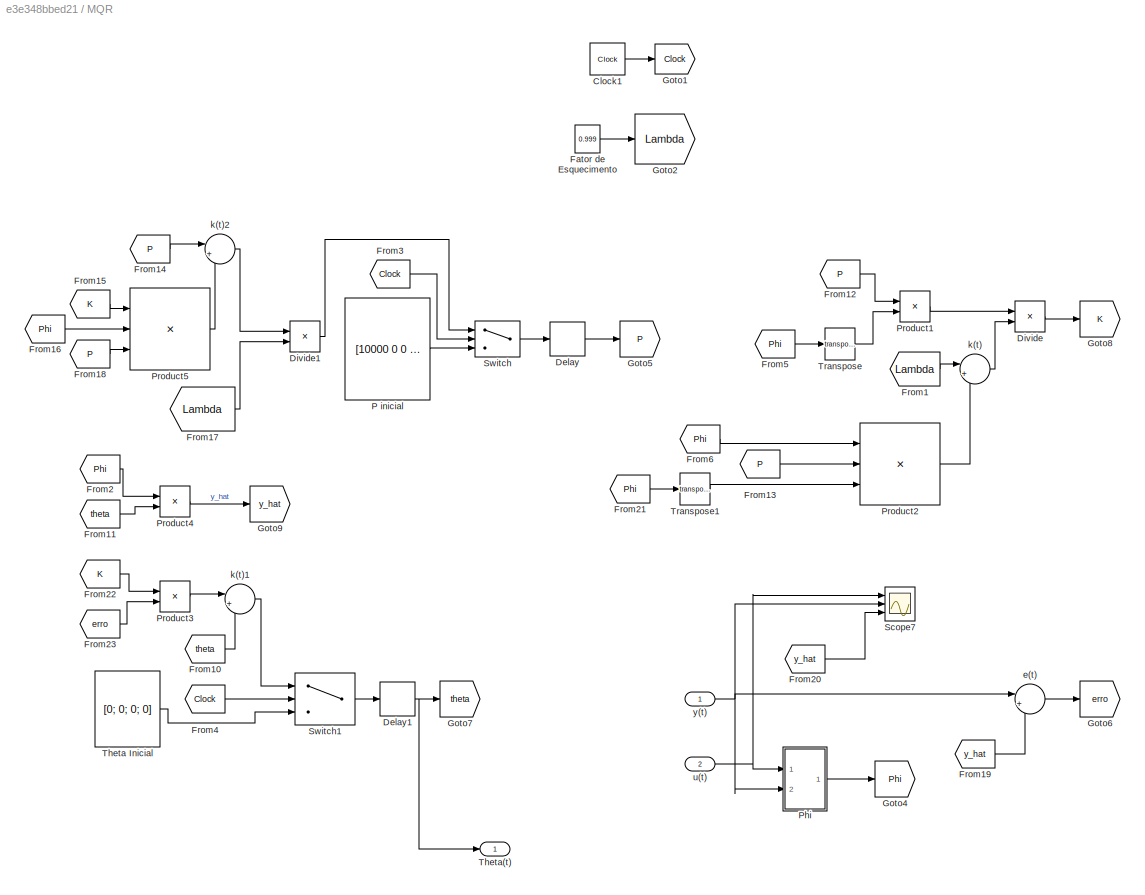
BLOCK [SubSystem] MQR
  Ports = [2, 1]
  RequestExecContextInheritance = off
BLOCK [Clock] MQR/Clock1
BLOCK [Delay] MQR/Delay
  DelayLength = 1
  InitialCondition = 0
  InputPortMap = u0
  Ports = [1, 1]
BLOCK [Delay] MQR/Delay1
  DelayLength = 1
  InitialCondition = 0
  InputPortMap = u0
  Ports = [1, 1]
BLOCK [Product] MQR/Divide
  InputSameDT = off
  Inputs = */
  OutDataTypeStr = Inherit: Inherit via internal rule
  Ports = [2, 1]
  RndMeth = Floor
  SaturateOnIntegerOverflow = off
BLOCK [Product] MQR/Divide1
  InputSameDT = off
  Inputs = */
  OutDataTypeStr = Inherit: Inherit via internal rule
  Ports = [2, 1]
  RndMeth = Floor
  SaturateOnIntegerOverflow = off
BLOCK [Constant] MQR/Fator de Esquecimento 
  Value = 0.999
BLOCK [From] MQR/From1
  GotoTag = Lambda
BLOCK [From] MQR/From10
  GotoTag = theta
BLOCK [From] MQR/From11
  GotoTag = theta
BLOCK [From] MQR/From12
  GotoTag = P
BLOCK [From] MQR/From13
  GotoTag = P
BLOCK [From] MQR/From14
  GotoTag = P
BLOCK [From] MQR/From15
  GotoTag = K
BLOCK [From] MQR/From16
  GotoTag = Phi
BLOCK [From] MQR/From17
  GotoTag = Lambda
BLOCK [From] MQR/From18
  GotoTag = P
BLOCK [From] MQR/From19
  GotoTag = y_hat
BLOCK [From] MQR/From2
  GotoTag = Phi
BLOCK [From] MQR/From20
  GotoTag = y_hat
BLOCK [From] MQR/From21
  GotoTag = Phi
BLOCK [From] MQR/From22
  GotoTag = K
BLOCK [From] MQR/From23
  GotoTag = erro
BLOCK [From] MQR/From3
  GotoTag = Clock
BLOCK [From] MQR/From4
  GotoTag = Clock
BLOCK [From] MQR/From5
  GotoTag = Phi
BLOCK [From] MQR/From6
  GotoTag = Phi
BLOCK [Goto] MQR/Goto1
  GotoTag = Clock
BLOCK [Goto] MQR/Goto2
  GotoTag = Lambda
BLOCK [Goto] MQR/Goto4
  GotoTag = Phi
BLOCK [Goto] MQR/Goto5
  GotoTag = P
BLOCK [Goto] MQR/Goto6
  GotoTag = erro
BLOCK [Goto] MQR/Goto7
  GotoTag = theta
BLOCK [Goto] MQR/Goto8
  GotoTag = K
BLOCK [Goto] MQR/Goto9
  GotoTag = y_hat
BLOCK [Constant] MQR/P inicial
  Value = [10000 0 0 0; 0 10000 0 0; 0 0 10000 0; 0 0 0 10000]
BLOCK [SubSystem] MQR/Phi
  Ports = [2, 1]
  RequestExecContextInheritance = off
BLOCK [Constant] MQR/Phi/Constant
  Value = -1
BLOCK [Delay] MQR/Phi/Delay
  InputPortMap = u0
  Ports = [1, 1]
BLOCK [Delay] MQR/Phi/Delay1
  DelayLength = 1
  InputPortMap = u0
  Ports = [1, 1]
BLOCK [Delay] MQR/Phi/Delay2
  InputPortMap = u0
  Ports = [1, 1]
BLOCK [Delay] MQR/Phi/Delay3
  DelayLength = 1
  InputPortMap = u0
  Ports = [1, 1]
BLOCK [Outport] MQR/Phi/Phi
  IconDisplay = Port number
BLOCK [Product] MQR/Phi/Product
  InputSameDT = off
  OutDataTypeStr = Inherit: Inherit via internal rule
  Ports = [2, 1]
  RndMeth = Floor
  SaturateOnIntegerOverflow = off
BLOCK [Math] MQR/Phi/Transpose1
  Operator = transpose
  Ports = [1, 1]
BLOCK [Concatenate] MQR/Phi/Vector Concatenate
  NumInputs = 4
  Ports = [4, 1]
BLOCK [Inport] MQR/Phi/u(t)
  IconDisplay = Port number
BLOCK [Inport] MQR/Phi/y(t)
  IconDisplay = Port number
  Port = 2
BLOCK [Product] MQR/Product1
  InputSameDT = off
  Multiplication = Matrix(*)
  OutDataTypeStr = Inherit: Inherit via internal rule
  Ports = [2, 1]
  RndMeth = Floor
  SaturateOnIntegerOverflow = off
BLOCK [Product] MQR/Product2
  InputSameDT = off
  Inputs = 3
  Multiplication = Matrix(*)
  OutDataTypeStr = Inherit: Inherit via internal rule
  Ports = [3, 1]
  RndMeth = Floor
  SaturateOnIntegerOverflow = off
BLOCK [Product] MQR/Product3
  InputSameDT = off
  Multiplication = Matrix(*)
  OutDataTypeStr = Inherit: Inherit via internal rule
  Ports = [2, 1]
  RndMeth = Floor
  SaturateOnIntegerOverflow = off
BLOCK [Product] MQR/Product4
  InputSameDT = off
  Multiplication = Matrix(*)
  OutDataTypeStr = Inherit: Inherit via internal rule
  Ports = [2, 1]
  RndMeth = Floor
  SaturateOnIntegerOverflow = off
BLOCK [Product] MQR/Product5
  InputSameDT = off
  Inputs = 3
  Multiplication = Matrix(*)
  OutDataTypeStr = Inherit: Inherit via internal rule
  Ports = [3, 1]
  RndMeth = Floor
  SaturateOnIntegerOverflow = off
BLOCK [Scope] MQR/Scope7
  Floating = off
  NumInputPorts = 3
  Ports = [3]
  ScopeSpecificationString = Simulink.scopes.TimeScopeBlockCfg('CurrentConfiguration', extmgr.ConfigurationSet(extmgr.Configuration('Core','General UI',true,'FigureColor',[0.156862745098039 0.156862745098039 0.156862745098039]),extmgr.Configuration('Core','Source UI',true),extmgr.Configuration('Sources','WiredSimulink',true,'DataLoggingVariableName','ScopeData1','DataLoggingSaveFormat','StructureWithTime','DataLoggingDecimati...<+3159ch>
BLOCK [Switch] MQR/Switch
  Criteria = u2 > Threshold
  InputSameDT = off
  SaturateOnIntegerOverflow = off
BLOCK [Switch] MQR/Switch1
  Criteria = u2 > Threshold
  InputSameDT = off
  SaturateOnIntegerOverflow = off
BLOCK [Constant] MQR/Theta Inicial 
  Value = [0; 0; 0; 0]
BLOCK [Outport] MQR/Theta(t) 
  IconDisplay = Port number
BLOCK [Math] MQR/Transpose
  Operator = transpose
  Ports = [1, 1]
BLOCK [Math] MQR/Transpose1
  Operator = transpose
  Ports = [1, 1]
BLOCK [Sum] MQR/e(t)
  IconShape = round
  InputSameDT = off
  Inputs = |+-
  OutDataTypeStr = Inherit: Inherit via internal rule
  Ports = [2, 1]
  SaturateOnIntegerOverflow = off
BLOCK [Sum] MQR/k(t)
  IconShape = round
  InputSameDT = off
  Inputs = |++
  OutDataTypeStr = Inherit: Inherit via internal rule
  Ports = [2, 1]
  SaturateOnIntegerOverflow = off
BLOCK [Sum] MQR/k(t)1
  IconShape = round
  InputSameDT = off
  Inputs = |++
  OutDataTypeStr = Inherit: Inherit via internal rule
  Ports = [2, 1]
  SaturateOnIntegerOverflow = off
BLOCK [Sum] MQR/k(t)2
  IconShape = round
  InputSameDT = off
  Inputs = |+-
  OutDataTypeStr = Inherit: Inherit via internal rule
  Ports = [2, 1]
  SaturateOnIntegerOverflow = off
BLOCK [Inport] MQR/u(t) 
  IconDisplay = Port number
  Port = 2
BLOCK [Inport] MQR/y(t)
  IconDisplay = Port number
BLOCK [Mux] Mux
  DisplayOption = bar
  Inputs = 3
  Ports = [3, 1]
BLOCK [SubSystem] Performance do Sistema
  Ports = [3]
  RequestExecContextInheritance = off
BLOCK [Abs] Performance do Sistema/Abs
  SaturateOnIntegerOverflow = off
BLOCK [Clock] Performance do Sistema/Clock
  Decimation = 1
BLOCK [Gain] Performance do Sistema/Gain
  Gain = 0.01
  OutDataTypeStr = Inherit: Inherit via internal rule
  ParamDataTypeStr = Inherit: Inherit via internal rule
  SaturateOnIntegerOverflow = off
BLOCK [Gain] Performance do Sistema/Gain1
  Gain = 0.01
  OutDataTypeStr = Inherit: Inherit via internal rule
  ParamDataTypeStr = Inherit: Inherit via internal rule
  SaturateOnIntegerOverflow = off
BLOCK [Gain] Performance do Sistema/Gain2
  Gain = 0.01
  OutDataTypeStr = Inherit: Inherit via internal rule
  ParamDataTypeStr = Inherit: Inherit via internal rule
  SaturateOnIntegerOverflow = off
BLOCK [Integrator] Performance do Sistema/Integrator
  Ports = [1, 1]
BLOCK [Integrator] Performance do Sistema/Integrator1
  Ports = [1, 1]
BLOCK [Integrator] Performance do Sistema/Integrator2
  Ports = [1, 1]
BLOCK [Integrator] Performance do Sistema/Integrator3
  Ports = [1, 1]
BLOCK [Integrator] Performance do Sistema/Integrator4
  Ports = [1, 1]
BLOCK [Integrator] Performance do Sistema/Integrator5
  Ports = [1, 1]
BLOCK [Scope] Performance do Sistema/Output Signal
  Floating = off
  NumInputPorts = 1
  Ports = [1]
  ScopeSpecificationString = Simulink.scopes.TimeScopeBlockCfg('CurrentConfiguration', extmgr.ConfigurationSet(extmgr.Configuration('Core','General UI',true,'FigureColor',[1 1 1]),extmgr.Configuration('Core','Source UI',true),extmgr.Configuration('Sources','WiredSimulink',true,'DataLoggingVariableName','ScopeData1','DataLoggingSaveFormat','StructureWithTime','DataLoggingDecimation','1','DataLoggingDecimateData',true),extmgr.C...<+2862ch>
BLOCK [Product] Performance do Sistema/Product
  InputSameDT = off
  OutDataTypeStr = Inherit: Inherit via internal rule
  Ports = [2, 1]
  RndMeth = Floor
  SaturateOnIntegerOverflow = off
BLOCK [Math] Performance do Sistema/Square
  Operator = square
  Ports = [1, 1]
BLOCK [Math] Performance do Sistema/Square1
  Operator = square
  Ports = [1, 1]
BLOCK [Sum] Performance do Sistema/Subtract
  InputSameDT = off
  Inputs = +-
  OutDataTypeStr = Inherit: Inherit via internal rule
  Ports = [2, 1]
  SaturateOnIntegerOverflow = off
BLOCK [Sum] Performance do Sistema/Sum of Elements
  InputSameDT = off
  OutDataTypeStr = Inherit: Inherit via internal rule
  Ports = [2, 1]
  SaturateOnIntegerOverflow = off
BLOCK [Sum] Performance do Sistema/Sum of Elements1
  InputSameDT = off
  OutDataTypeStr = Inherit: Inherit via internal rule
  Ports = [2, 1]
  SaturateOnIntegerOverflow = off
BLOCK [ToWorkspace] Performance do Sistema/To Workspace
  FixptAsFi = on
  MaxDataPoints = inf
  Ports = [1]
  SampleTime = -1
  Save2DSignal = 3-D array (concatenate along third dimension)
  SaveFormat = Timeseries
  VariableName = ISE
BLOCK [ToWorkspace] Performance do Sistema/To Workspace1
  FixptAsFi = on
  MaxDataPoints = inf
  Ports = [1]
  SampleTime = -1
  Save2DSignal = 3-D array (concatenate along third dimension)
  SaveFormat = Timeseries
  VariableName = IAE
BLOCK [ToWorkspace] Performance do Sistema/To Workspace2
  FixptAsFi = on
  MaxDataPoints = inf
  Ports = [1]
  SampleTime = -1
  Save2DSignal = 3-D array (concatenate along third dimension)
  SaveFormat = Timeseries
  VariableName = ITAE
BLOCK [ToWorkspace] Performance do Sistema/To Workspace3
  FixptAsFi = on
  MaxDataPoints = inf
  Ports = [1]
  SampleTime = -1
  Save2DSignal = 3-D array (concatenate along third dimension)
  SaveFormat = Timeseries
  VariableName = IRBEMCE
BLOCK [ToWorkspace] Performance do Sistema/To Workspace4
  FixptAsFi = on
  MaxDataPoints = inf
  Ports = [1]
  SampleTime = -1
  Save2DSignal = 3-D array (concatenate along third dimension)
  SaveFormat = Timeseries
  VariableName = IRBMSEMCE
BLOCK [Inport] Performance do Sistema/r(t)
  IconDisplay = Port number
BLOCK [Inport] Performance do Sistema/u(t)
  IconDisplay = Port number
  Port = 3
BLOCK [Inport] Performance do Sistema/y(t)
  IconDisplay = Port number
  Port = 2
BLOCK [DiscreteFilter] Planta
  Denominator = A
  InputPortMap = u0
  Numerator = B
  Ports = [1, 1]
  SampleTime = Ta
  a0EqualsOne = on
BLOCK [EditField] Ponderaçao de (e(t))²
  Alignment = Center
  LabelPosition = Hide
  ShowInitialText = on
  WebBlockId = 1158
BLOCK [EditField] Ponderaçao de e(t)
  Alignment = Center
  LabelPosition = Hide
  ShowInitialText = on
  WebBlockId = 1155
BLOCK [EditField] Ponderaçao de u(t)
  Alignment = Center
  LabelPosition = Hide
  ShowInitialText = on
  WebBlockId = 1156
BLOCK [EditField] Rampa
  Alignment = Center
  LabelPosition = Hide
  ShowInitialText = on
  WebBlockId = 1123
BLOCK [RotarySwitchBlock] Rotary Switch
  WebBlockId = 1169
BLOCK [RotarySwitchBlock] Rotary Switch2
  WebBlockId = 1120
BLOCK [Scope] Scope
  Floating = off
  NumInputPorts = 1
  Ports = [1]
  ScopeSpecificationString = Simulink.scopes.TimeScopeBlockCfg('CurrentConfiguration', extmgr.ConfigurationSet(extmgr.Configuration('Core','General UI',true),extmgr.Configuration('Core','Source UI',true),extmgr.Configuration('Sources','WiredSimulink',true,'DataLoggingVariableName','ScopeData1'),extmgr.Configuration('Visuals','Time Domain',true,'SerializedDisplays',{struct('MinYLimReal','-0.2497','MaxYLimReal','1.24786','YLabe...<+1388ch>
BLOCK [Scope] Scope2
  Floating = off
  NumInputPorts = 2
  Ports = [2]
  ScopeSpecificationString = Simulink.scopes.TimeScopeBlockCfg('CurrentConfiguration', extmgr.ConfigurationSet(extmgr.Configuration('Core','General UI',true),extmgr.Configuration('Core','Source UI',true),extmgr.Configuration('Sources','WiredSimulink',true,'DataLoggingVariableName','auto_reg_2','DataLoggingSaveFormat','StructureWithTime','DataLogging',true),extmgr.Configuration('Visuals','Time Domain',true,'SerializedDisplays'...<+1502ch>
BLOCK [Scope] Scope4
  Floating = off
  NumInputPorts = 1
  Ports = [1]
  ScopeSpecificationString = Simulink.scopes.TimeScopeBlockCfg('CurrentConfiguration', extmgr.ConfigurationSet(extmgr.Configuration('Core','General UI',true,'FigureColor',[0.156862745098039 0.156862745098039 0.156862745098039]),extmgr.Configuration('Core','Source UI',true),extmgr.Configuration('Sources','WiredSimulink',true,'DataLoggingVariableName','ut_auto_reg_2','DataLoggingSaveFormat','StructureWithTime','DataLoggingDecim...<+3198ch>
BLOCK [Step] Step1
  SampleTime = 0
  Time = 60
BLOCK [Step] Step2
  After = -1
  SampleTime = 0
  Time = 61
BLOCK [Step] Step3
  SampleTime = 0
  Time = 60
BLOCK [Step] Step4
  After = -1
  SampleTime = 0
  Time = 61
BLOCK [Sum] Sum
  IconShape = round
  InputSameDT = off
  Inputs = |++++
  OutDataTypeStr = Inherit: Inherit via internal rule
  Ports = [4, 1]
  SaturateOnIntegerOverflow = off
BLOCK [Sum] Sum1
  IconShape = round
  InputSameDT = off
  Inputs = |+++
  OutDataTypeStr = Inherit: Inherit via internal rule
  Ports = [3, 1]
  SaturateOnIntegerOverflow = off
BLOCK [ToFile] To File
  Filename = auto_reg_values.mat
  Ports = [1]
BLOCK [UniformRandomNumber] Uniform Random Number
  Maximum = 0.10
  Minimum = -0.10
  SampleTime = 0
  Seed = 10
BLOCK [UniformRandomNumber] Uniform Random Number1
  Maximum = 0.10
  Minimum = -0.10
  SampleTime = 0
  Seed = 10
ANNOTATION (root): Performance do Sistema
ANNOTATION (root): IAE
ANNOTATION (root): IRBEMCE
ANNOTATION (root): IRBMSEMCE
ANNOTATION (root): ISE
ANNOTATION (root): ITAE
NET Auto-Ajuste/Coeficiente de Amortecimento:1 -> Auto-Ajuste/RST Degrau:3, Auto-Ajuste/RST Rampa:3, Auto-Ajuste/RST Senoide:3
NET Auto-Ajuste/Entrada Esperada:1 -> Auto-Ajuste/Multiport Switch1:1, Auto-Ajuste/Multiport Switch2:1, Auto-Ajuste/Multiport Switch:1
LINE Auto-Ajuste/Frequencia Senoide:1 -> Auto-Ajuste/RST Senoide:5
LINE Auto-Ajuste/Multiport Switch1:1 -> Auto-Ajuste/S:1
LINE Auto-Ajuste/Multiport Switch2:1 -> Auto-Ajuste/T:1
LINE Auto-Ajuste/Multiport Switch:1 -> Auto-Ajuste/R:1
LINE Auto-Ajuste/RST Degrau/ LU Inverse1:1 -> Auto-Ajuste/RST Degrau/Matrix Multiply1:1
LINE Auto-Ajuste/RST Degrau/ LU Inverse:1 -> Auto-Ajuste/RST Degrau/Matrix Multiply:1
LINE Auto-Ajuste/RST Degrau/Clock:1 -> Auto-Ajuste/RST Degrau/Goto:1
LINE Auto-Ajuste/RST Degrau/Coeficiente de Amortecimento:1 -> Auto-Ajuste/RST Degrau/Coeficientes de P:3
LINE Auto-Ajuste/RST Degrau/Coeficientes de P/ :1 -> Auto-Ajuste/RST Degrau/Coeficientes de P/Dot Product3:1
LINE Auto-Ajuste/RST Degrau/Coeficientes de P/1:1 -> Auto-Ajuste/RST Degrau/Coeficientes de P/Subtract:1
LINE Auto-Ajuste/RST Degrau/Coeficientes de P/Constant1:1 -> Auto-Ajuste/RST Degrau/Coeficientes de P/Dot Product1:1
LINE Auto-Ajuste/RST Degrau/Coeficientes de P/Constant2:1 -> Auto-Ajuste/RST Degrau/Coeficientes de P/Math Function1:2
LINE Auto-Ajuste/RST Degrau/Coeficientes de P/Constant3:1 -> Auto-Ajuste/RST Degrau/Coeficientes de P/Dot Product8:1
LINE Auto-Ajuste/RST Degrau/Coeficientes de P/Constant:1 -> Auto-Ajuste/RST Degrau/Coeficientes de P/Divide:1
NET Auto-Ajuste/RST Degrau/Coeficientes de P/Divide:1 -> Auto-Ajuste/RST Degrau/Coeficientes de P/Dot Product2:1, Auto-Ajuste/RST Degrau/Coeficientes de P/Goto:1
LINE Auto-Ajuste/RST Degrau/Coeficientes de P/Dot Product1:1 -> Auto-Ajuste/RST Degrau/Coeficientes de P/Dot Product5:1
LINE Auto-Ajuste/RST Degrau/Coeficientes de P/Dot Product2:1 -> Auto-Ajuste/RST Degrau/Coeficientes de P/Dot Product4:2
LINE Auto-Ajuste/RST Degrau/Coeficientes de P/Dot Product3:1 -> Auto-Ajuste/RST Degrau/Coeficientes de P/Dot Product2:2
NET Auto-Ajuste/RST Degrau/Coeficientes de P/Dot Product4:1 -> Auto-Ajuste/RST Degrau/Coeficientes de P/Dot Product8:2, Auto-Ajuste/RST Degrau/Coeficientes de P/Math Function:1
LINE Auto-Ajuste/RST Degrau/Coeficientes de P/Dot Product5:1 -> Auto-Ajuste/RST Degrau/Coeficientes de P/P1:1
LINE Auto-Ajuste/RST Degrau/Coeficientes de P/Dot Product6:1 -> Auto-Ajuste/RST Degrau/Coeficientes de P/Trigonometric Function1:1
LINE Auto-Ajuste/RST Degrau/Coeficientes de P/Dot Product7:1 -> Auto-Ajuste/RST Degrau/Coeficientes de P/Dot Product6:1
LINE Auto-Ajuste/RST Degrau/Coeficientes de P/Dot Product8:1 -> Auto-Ajuste/RST Degrau/Coeficientes de P/Math Function2:1
LINE Auto-Ajuste/RST Degrau/Coeficientes de P/Dot Product:1 -> Auto-Ajuste/RST Degrau/Coeficientes de P/Divide:2
LINE Auto-Ajuste/RST Degrau/Coeficientes de P/From1:1 -> Auto-Ajuste/RST Degrau/Coeficientes de P/Dot Product7:2
LINE Auto-Ajuste/RST Degrau/Coeficientes de P/From:1 -> Auto-Ajuste/RST Degrau/Coeficientes de P/Dot Product7:1
LINE Auto-Ajuste/RST Degrau/Coeficientes de P/Math Function1:1 -> Auto-Ajuste/RST Degrau/Coeficientes de P/Subtract:2
LINE Auto-Ajuste/RST Degrau/Coeficientes de P/Math Function2:1 -> Auto-Ajuste/RST Degrau/Coeficientes de P/P2:1
LINE Auto-Ajuste/RST Degrau/Coeficientes de P/Math Function:1 -> Auto-Ajuste/RST Degrau/Coeficientes de P/Dot Product1:2
LINE Auto-Ajuste/RST Degrau/Coeficientes de P/Sqrt:1 -> Auto-Ajuste/RST Degrau/Coeficientes de P/Dot Product6:2
LINE Auto-Ajuste/RST Degrau/Coeficientes de P/Subtract:1 -> Auto-Ajuste/RST Degrau/Coeficientes de P/Sqrt:1
NET Auto-Ajuste/RST Degrau/Coeficientes de P/Ta:1 -> Auto-Ajuste/RST Degrau/Coeficientes de P/Dot Product4:1, Auto-Ajuste/RST Degrau/Coeficientes de P/Goto1:1
LINE Auto-Ajuste/RST Degrau/Coeficientes de P/Trigonometric Function1:1 -> Auto-Ajuste/RST Degrau/Coeficientes de P/Dot Product5:2
LINE Auto-Ajuste/RST Degrau/Coeficientes de P/Ts:1 -> Auto-Ajuste/RST Degrau/Coeficientes de P/Dot Product:1
NET Auto-Ajuste/RST Degrau/Coeficientes de P/ep:1 -> Auto-Ajuste/RST Degrau/Coeficientes de P/Dot Product3:2, Auto-Ajuste/RST Degrau/Coeficientes de P/Dot Product:2, Auto-Ajuste/RST Degrau/Coeficientes de P/Math Function1:1
LINE Auto-Ajuste/RST Degrau/Coeficientes de P:1 -> Auto-Ajuste/RST Degrau/Matriz Q1:1
LINE Auto-Ajuste/RST Degrau/Coeficientes de P:2 -> Auto-Ajuste/RST Degrau/Matriz Q1:2
LINE Auto-Ajuste/RST Degrau/Demux1:1 -> Auto-Ajuste/RST Degrau/Mux3:1
LINE Auto-Ajuste/RST Degrau/Demux1:2 -> Auto-Ajuste/RST Degrau/Mux3:2
LINE Auto-Ajuste/RST Degrau/Demux1:3 -> Auto-Ajuste/RST Degrau/Mux2:1
LINE Auto-Ajuste/RST Degrau/Demux1:4 -> Auto-Ajuste/RST Degrau/Mux2:2
LINE Auto-Ajuste/RST Degrau/Demux:1 -> Auto-Ajuste/RST Degrau/Mux1:1
LINE Auto-Ajuste/RST Degrau/Demux:2 -> Auto-Ajuste/RST Degrau/Mux1:2
LINE Auto-Ajuste/RST Degrau/Demux:3 -> Auto-Ajuste/RST Degrau/Mux:1
LINE Auto-Ajuste/RST Degrau/Demux:4 -> Auto-Ajuste/RST Degrau/Mux:2
LINE Auto-Ajuste/RST Degrau/From:1 -> Auto-Ajuste/RST Degrau/Switch1:2
LINE Auto-Ajuste/RST Degrau/Matrix Multiply1:1 -> Auto-Ajuste/RST Degrau/Demux1:1
LINE Auto-Ajuste/RST Degrau/Matrix Multiply:1 -> Auto-Ajuste/RST Degrau/Demux:1
NET Auto-Ajuste/RST Degrau/Matriz M1/ 1:1 -> Auto-Ajuste/RST Degrau/Matriz M1/Matrix Concatenate11:1, Auto-Ajuste/RST Degrau/Matriz M1/Matrix Concatenate11:3, Auto-Ajuste/RST Degrau/Matriz M1/Matrix Concatenate6:2, Auto-Ajuste/RST Degrau/Matriz M1/Matrix Concatenate6:3, Auto-Ajuste/RST Degrau/Matriz M1/Matrix Concatenate6:4, Auto-Ajuste/RST Degrau/Matriz M1/Matrix Concatenate9:4
NET Auto-Ajuste/RST Degrau/Matriz M1/2:1 -> Auto-Ajuste/RST Degrau/Matriz M1/Matrix Concatenate6:1, Auto-Ajuste/RST Degrau/Matriz M1/Matrix Concatenate9:2
NET Auto-Ajuste/RST Degrau/Matriz M1/Demux:1 -> Auto-Ajuste/RST Degrau/Matriz M1/Matrix Concatenate10:2, Auto-Ajuste/RST Degrau/Matriz M1/Matrix Concatenate9:1
NET Auto-Ajuste/RST Degrau/Matriz M1/Demux:2 -> Auto-Ajuste/RST Degrau/Matriz M1/Matrix Concatenate10:1, Auto-Ajuste/RST Degrau/Matriz M1/Matrix Concatenate11:2
NET Auto-Ajuste/RST Degrau/Matriz M1/Demux:3 -> Auto-Ajuste/RST Degrau/Matriz M1/Matrix Concatenate10:4, Auto-Ajuste/RST Degrau/Matriz M1/Matrix Concatenate9:3
NET Auto-Ajuste/RST Degrau/Matriz M1/Demux:4 -> Auto-Ajuste/RST Degrau/Matriz M1/Matrix Concatenate10:3, Auto-Ajuste/RST Degrau/Matriz M1/Matrix Concatenate11:4
LINE Auto-Ajuste/RST Degrau/Matriz M1/In1:1 -> Auto-Ajuste/RST Degrau/Matriz M1/Demux:1
LINE Auto-Ajuste/RST Degrau/Matriz M1/Matrix Concatenate10:1 -> Auto-Ajuste/RST Degrau/Matriz M1/Matrix Concatenate13:1
LINE Auto-Ajuste/RST Degrau/Matriz M1/Matrix Concatenate11:1 -> Auto-Ajuste/RST Degrau/Matriz M1/Matrix Concatenate13:2
LINE Auto-Ajuste/RST Degrau/Matriz M1/Matrix Concatenate12:1 -> Auto-Ajuste/RST Degrau/Matriz M1/Matrix Concatenate14:1
LINE Auto-Ajuste/RST Degrau/Matriz M1/Matrix Concatenate13:1 -> Auto-Ajuste/RST Degrau/Matriz M1/Matrix Concatenate14:2
LINE Auto-Ajuste/RST Degrau/Matriz M1/Matrix Concatenate14:1 -> Auto-Ajuste/RST Degrau/Matriz M1/M1:1
LINE Auto-Ajuste/RST Degrau/Matriz M1/Matrix Concatenate6:1 -> Auto-Ajuste/RST Degrau/Matriz M1/Matrix Concatenate12:1
LINE Auto-Ajuste/RST Degrau/Matriz M1/Matrix Concatenate9:1 -> Auto-Ajuste/RST Degrau/Matriz M1/Matrix Concatenate12:2
LINE Auto-Ajuste/RST Degrau/Matriz M1:1 -> Auto-Ajuste/RST Degrau/ LU Inverse:1
NET Auto-Ajuste/RST Degrau/Matriz M2/Constant1:1 -> Auto-Ajuste/RST Degrau/Matriz M2/Matrix Concatenate4:1, Auto-Ajuste/RST Degrau/Matriz M2/Matrix Concatenate6:2
NET Auto-Ajuste/RST Degrau/Matriz M2/Constant2:1 -> Auto-Ajuste/RST Degrau/Matriz M2/Matrix Concatenate5:2, Auto-Ajuste/RST Degrau/Matriz M2/Matrix Concatenate6:1
NET Auto-Ajuste/RST Degrau/Matriz M2/Constant3:1 -> Auto-Ajuste/RST Degrau/Matriz M2/Matrix Concatenate2:1, Auto-Ajuste/RST Degrau/Matriz M2/Matrix Concatenate2:3, Auto-Ajuste/RST Degrau/Matriz M2/Matrix Concatenate4:2, Auto-Ajuste/RST Degrau/Matriz M2/Matrix Concatenate4:3, Auto-Ajuste/RST Degrau/Matriz M2/Matrix Concatenate4:4, Auto-Ajuste/RST Degrau/Matriz M2/Matrix Concatenate6:4
NET Auto-Ajuste/RST Degrau/Matriz M2/Constant4:1 -> Auto-Ajuste/RST Degrau/Matriz M2/Matrix Concatenate2:2, Auto-Ajuste/RST Degrau/Matriz M2/Matrix Concatenate5:1
LINE Auto-Ajuste/RST Degrau/Matriz M2/Demux1:1 -> Auto-Ajuste/RST Degrau/Matriz M2/Mux:1
LINE Auto-Ajuste/RST Degrau/Matriz M2/Demux1:2 -> Auto-Ajuste/RST Degrau/Matriz M2/Mux:2
NET Auto-Ajuste/RST Degrau/Matriz M2/Demux1:3 -> Auto-Ajuste/RST Degrau/Matriz M2/Matrix Concatenate5:4, Auto-Ajuste/RST Degrau/Matriz M2/Matrix Concatenate6:3
NET Auto-Ajuste/RST Degrau/Matriz M2/Demux1:4 -> Auto-Ajuste/RST Degrau/Matriz M2/Matrix Concatenate2:4, Auto-Ajuste/RST Degrau/Matriz M2/Matrix Concatenate5:3
LINE Auto-Ajuste/RST Degrau/Matriz M2/Matrix Concatenate12:1 -> Auto-Ajuste/RST Degrau/Matriz M2/Matrix Concatenate14:1
LINE Auto-Ajuste/RST Degrau/Matriz M2/Matrix Concatenate13:1 -> Auto-Ajuste/RST Degrau/Matriz M2/Matrix Concatenate14:2
LINE Auto-Ajuste/RST Degrau/Matriz M2/Matrix Concatenate14:1 -> Auto-Ajuste/RST Degrau/Matriz M2/M2:1
LINE Auto-Ajuste/RST Degrau/Matriz M2/Matrix Concatenate2:1 -> Auto-Ajuste/RST Degrau/Matriz M2/Matrix Concatenate13:2
LINE Auto-Ajuste/RST Degrau/Matriz M2/Matrix Concatenate4:1 -> Auto-Ajuste/RST Degrau/Matriz M2/Matrix Concatenate12:1
LINE Auto-Ajuste/RST Degrau/Matriz M2/Matrix Concatenate5:1 -> Auto-Ajuste/RST Degrau/Matriz M2/Matrix Concatenate13:1
LINE Auto-Ajuste/RST Degrau/Matriz M2/Matrix Concatenate6:1 -> Auto-Ajuste/RST Degrau/Matriz M2/Matrix Concatenate12:2
LINE Auto-Ajuste/RST Degrau/Matriz M2/Mux:1 -> Auto-Ajuste/RST Degrau/Matriz M2/Display:1
LINE Auto-Ajuste/RST Degrau/Matriz M2/Theta:1 -> Auto-Ajuste/RST Degrau/Matriz M2/Demux1:1
LINE Auto-Ajuste/RST Degrau/Matriz M2:1 -> Auto-Ajuste/RST Degrau/ LU Inverse1:1
LINE Auto-Ajuste/RST Degrau/Matriz Q1/Constant1:1 -> Auto-Ajuste/RST Degrau/Matriz Q1/Matrix Concatenate3:2
LINE Auto-Ajuste/RST Degrau/Matriz Q1/Constant:1 -> Auto-Ajuste/RST Degrau/Matriz Q1/Matrix Concatenate1:1
LINE Auto-Ajuste/RST Degrau/Matriz Q1/Matrix Concatenate1:1 -> Auto-Ajuste/RST Degrau/Matriz Q1/Matrix Concatenate2:1
LINE Auto-Ajuste/RST Degrau/Matriz Q1/Matrix Concatenate2:1 -> Auto-Ajuste/RST Degrau/Matriz Q1/Q1:1
LINE Auto-Ajuste/RST Degrau/Matriz Q1/Matrix Concatenate3:1 -> Auto-Ajuste/RST Degrau/Matriz Q1/Matrix Concatenate2:2
LINE Auto-Ajuste/RST Degrau/Matriz Q1/P1:1 -> Auto-Ajuste/RST Degrau/Matriz Q1/Matrix Concatenate1:2
LINE Auto-Ajuste/RST Degrau/Matriz Q1/P2:1 -> Auto-Ajuste/RST Degrau/Matriz Q1/Matrix Concatenate3:1
NET Auto-Ajuste/RST Degrau/Matriz Q1:1 -> Auto-Ajuste/RST Degrau/Matrix Multiply1:2, Auto-Ajuste/RST Degrau/Matrix Multiply:2
LINE Auto-Ajuste/RST Degrau/Mux1:1 -> Auto-Ajuste/RST Degrau/S:1
LINE Auto-Ajuste/RST Degrau/Mux2:1 -> Auto-Ajuste/RST Degrau/T:1
LINE Auto-Ajuste/RST Degrau/Mux3:1 -> Auto-Ajuste/RST Degrau/L:1
LINE Auto-Ajuste/RST Degrau/Mux:1 -> Auto-Ajuste/RST Degrau/R:1
NET Auto-Ajuste/RST Degrau/Switch1:1 -> Auto-Ajuste/RST Degrau/Matriz M1:1, Auto-Ajuste/RST Degrau/Matriz M2:1
LINE Auto-Ajuste/RST Degrau/Tempo de Amostragem:1 -> Auto-Ajuste/RST Degrau/Coeficientes de P:1
LINE Auto-Ajuste/RST Degrau/Tempo de Estabilizaçao:1 -> Auto-Ajuste/RST Degrau/Coeficientes de P:2
LINE Auto-Ajuste/RST Degrau/Theta Inicial:1 -> Auto-Ajuste/RST Degrau/Switch1:3
LINE Auto-Ajuste/RST Degrau/Theta:1 -> Auto-Ajuste/RST Degrau/Switch1:1
LINE Auto-Ajuste/RST Degrau:1 -> Auto-Ajuste/Multiport Switch:2
LINE Auto-Ajuste/RST Degrau:2 -> Auto-Ajuste/Multiport Switch1:2
LINE Auto-Ajuste/RST Degrau:3 -> Auto-Ajuste/Multiport Switch2:2
LINE Auto-Ajuste/RST Degrau:4 -> Auto-Ajuste/Display1:1
LINE Auto-Ajuste/RST Rampa/ LU Inverse1:1 -> Auto-Ajuste/RST Rampa/Matrix Multiply1:1
LINE Auto-Ajuste/RST Rampa/ LU Inverse:1 -> Auto-Ajuste/RST Rampa/Matrix Multiply:1
LINE Auto-Ajuste/RST Rampa/Clock:1 -> Auto-Ajuste/RST Rampa/Goto:1
LINE Auto-Ajuste/RST Rampa/Coeficiente de Amortecimento:1 -> Auto-Ajuste/RST Rampa/Coeficientes de P:3
LINE Auto-Ajuste/RST Rampa/Coeficientes de P/ :1 -> Auto-Ajuste/RST Rampa/Coeficientes de P/Dot Product3:1
LINE Auto-Ajuste/RST Rampa/Coeficientes de P/1:1 -> Auto-Ajuste/RST Rampa/Coeficientes de P/Subtract:1
LINE Auto-Ajuste/RST Rampa/Coeficientes de P/Constant1:1 -> Auto-Ajuste/RST Rampa/Coeficientes de P/Dot Product1:1
LINE Auto-Ajuste/RST Rampa/Coeficientes de P/Constant2:1 -> Auto-Ajuste/RST Rampa/Coeficientes de P/Math Function1:2
LINE Auto-Ajuste/RST Rampa/Coeficientes de P/Constant3:1 -> Auto-Ajuste/RST Rampa/Coeficientes de P/Dot Product8:1
LINE Auto-Ajuste/RST Rampa/Coeficientes de P/Constant:1 -> Auto-Ajuste/RST Rampa/Coeficientes de P/Divide:1
NET Auto-Ajuste/RST Rampa/Coeficientes de P/Divide:1 -> Auto-Ajuste/RST Rampa/Coeficientes de P/Dot Product2:1, Auto-Ajuste/RST Rampa/Coeficientes de P/Goto:1
LINE Auto-Ajuste/RST Rampa/Coeficientes de P/Dot Product1:1 -> Auto-Ajuste/RST Rampa/Coeficientes de P/Dot Product5:1
LINE Auto-Ajuste/RST Rampa/Coeficientes de P/Dot Product2:1 -> Auto-Ajuste/RST Rampa/Coeficientes de P/Dot Product4:2
LINE Auto-Ajuste/RST Rampa/Coeficientes de P/Dot Product3:1 -> Auto-Ajuste/RST Rampa/Coeficientes de P/Dot Product2:2
NET Auto-Ajuste/RST Rampa/Coeficientes de P/Dot Product4:1 -> Auto-Ajuste/RST Rampa/Coeficientes de P/Dot Product8:2, Auto-Ajuste/RST Rampa/Coeficientes de P/Math Function:1
LINE Auto-Ajuste/RST Rampa/Coeficientes de P/Dot Product5:1 -> Auto-Ajuste/RST Rampa/Coeficientes de P/P1:1
LINE Auto-Ajuste/RST Rampa/Coeficientes de P/Dot Product6:1 -> Auto-Ajuste/RST Rampa/Coeficientes de P/Trigonometric Function1:1
LINE Auto-Ajuste/RST Rampa/Coeficientes de P/Dot Product7:1 -> Auto-Ajuste/RST Rampa/Coeficientes de P/Dot Product6:1
LINE Auto-Ajuste/RST Rampa/Coeficientes de P/Dot Product8:1 -> Auto-Ajuste/RST Rampa/Coeficientes de P/Math Function2:1
LINE Auto-Ajuste/RST Rampa/Coeficientes de P/Dot Product:1 -> Auto-Ajuste/RST Rampa/Coeficientes de P/Divide:2
LINE Auto-Ajuste/RST Rampa/Coeficientes de P/From1:1 -> Auto-Ajuste/RST Rampa/Coeficientes de P/Dot Product7:2
LINE Auto-Ajuste/RST Rampa/Coeficientes de P/From:1 -> Auto-Ajuste/RST Rampa/Coeficientes de P/Dot Product7:1
LINE Auto-Ajuste/RST Rampa/Coeficientes de P/Math Function1:1 -> Auto-Ajuste/RST Rampa/Coeficientes de P/Subtract:2
LINE Auto-Ajuste/RST Rampa/Coeficientes de P/Math Function2:1 -> Auto-Ajuste/RST Rampa/Coeficientes de P/P2:1
LINE Auto-Ajuste/RST Rampa/Coeficientes de P/Math Function:1 -> Auto-Ajuste/RST Rampa/Coeficientes de P/Dot Product1:2
LINE Auto-Ajuste/RST Rampa/Coeficientes de P/Sqrt:1 -> Auto-Ajuste/RST Rampa/Coeficientes de P/Dot Product6:2
LINE Auto-Ajuste/RST Rampa/Coeficientes de P/Subtract:1 -> Auto-Ajuste/RST Rampa/Coeficientes de P/Sqrt:1
NET Auto-Ajuste/RST Rampa/Coeficientes de P/Ta:1 -> Auto-Ajuste/RST Rampa/Coeficientes de P/Dot Product4:1, Auto-Ajuste/RST Rampa/Coeficientes de P/Goto1:1
LINE Auto-Ajuste/RST Rampa/Coeficientes de P/Trigonometric Function1:1 -> Auto-Ajuste/RST Rampa/Coeficientes de P/Dot Product5:2
LINE Auto-Ajuste/RST Rampa/Coeficientes de P/Ts:1 -> Auto-Ajuste/RST Rampa/Coeficientes de P/Dot Product:1
NET Auto-Ajuste/RST Rampa/Coeficientes de P/ep:1 -> Auto-Ajuste/RST Rampa/Coeficientes de P/Dot Product3:2, Auto-Ajuste/RST Rampa/Coeficientes de P/Dot Product:2, Auto-Ajuste/RST Rampa/Coeficientes de P/Math Function1:1
LINE Auto-Ajuste/RST Rampa/Coeficientes de P:1 -> Auto-Ajuste/RST Rampa/Matriz Q1:1
LINE Auto-Ajuste/RST Rampa/Coeficientes de P:2 -> Auto-Ajuste/RST Rampa/Matriz Q1:2
LINE Auto-Ajuste/RST Rampa/Demux1:1 -> Auto-Ajuste/RST Rampa/Mux3:1
LINE Auto-Ajuste/RST Rampa/Demux1:2 -> Auto-Ajuste/RST Rampa/Mux3:2
LINE Auto-Ajuste/RST Rampa/Demux1:3 -> Auto-Ajuste/RST Rampa/Mux2:1
LINE Auto-Ajuste/RST Rampa/Demux1:4 -> Auto-Ajuste/RST Rampa/Mux2:2
LINE Auto-Ajuste/RST Rampa/Demux:1 -> Auto-Ajuste/RST Rampa/Mux1:1
LINE Auto-Ajuste/RST Rampa/Demux:2 -> Auto-Ajuste/RST Rampa/Mux1:2
LINE Auto-Ajuste/RST Rampa/Demux:3 -> Auto-Ajuste/RST Rampa/Mux:1
LINE Auto-Ajuste/RST Rampa/Demux:4 -> Auto-Ajuste/RST Rampa/Mux:2
LINE Auto-Ajuste/RST Rampa/From:1 -> Auto-Ajuste/RST Rampa/Switch1:2
LINE Auto-Ajuste/RST Rampa/Matrix Multiply1:1 -> Auto-Ajuste/RST Rampa/Demux1:1
LINE Auto-Ajuste/RST Rampa/Matrix Multiply:1 -> Auto-Ajuste/RST Rampa/Demux:1
NET Auto-Ajuste/RST Rampa/Matriz M1/ 1:1 -> Auto-Ajuste/RST Rampa/Matriz M1/Matrix Concatenate11:1, Auto-Ajuste/RST Rampa/Matriz M1/Matrix Concatenate11:3, Auto-Ajuste/RST Rampa/Matriz M1/Matrix Concatenate6:2, Auto-Ajuste/RST Rampa/Matriz M1/Matrix Concatenate6:3, Auto-Ajuste/RST Rampa/Matriz M1/Matrix Concatenate6:4, Auto-Ajuste/RST Rampa/Matriz M1/Matrix Concatenate9:4
NET Auto-Ajuste/RST Rampa/Matriz M1/2:1 -> Auto-Ajuste/RST Rampa/Matriz M1/Matrix Concatenate6:1, Auto-Ajuste/RST Rampa/Matriz M1/Matrix Concatenate9:2
NET Auto-Ajuste/RST Rampa/Matriz M1/Demux:1 -> Auto-Ajuste/RST Rampa/Matriz M1/Matrix Concatenate10:2, Auto-Ajuste/RST Rampa/Matriz M1/Matrix Concatenate9:1
NET Auto-Ajuste/RST Rampa/Matriz M1/Demux:2 -> Auto-Ajuste/RST Rampa/Matriz M1/Matrix Concatenate10:1, Auto-Ajuste/RST Rampa/Matriz M1/Matrix Concatenate11:2
NET Auto-Ajuste/RST Rampa/Matriz M1/Demux:3 -> Auto-Ajuste/RST Rampa/Matriz M1/Matrix Concatenate10:4, Auto-Ajuste/RST Rampa/Matriz M1/Matrix Concatenate9:3
NET Auto-Ajuste/RST Rampa/Matriz M1/Demux:4 -> Auto-Ajuste/RST Rampa/Matriz M1/Matrix Concatenate10:3, Auto-Ajuste/RST Rampa/Matriz M1/Matrix Concatenate11:4
LINE Auto-Ajuste/RST Rampa/Matriz M1/In1:1 -> Auto-Ajuste/RST Rampa/Matriz M1/Demux:1
LINE Auto-Ajuste/RST Rampa/Matriz M1/Matrix Concatenate10:1 -> Auto-Ajuste/RST Rampa/Matriz M1/Matrix Concatenate13:1
LINE Auto-Ajuste/RST Rampa/Matriz M1/Matrix Concatenate11:1 -> Auto-Ajuste/RST Rampa/Matriz M1/Matrix Concatenate13:2
LINE Auto-Ajuste/RST Rampa/Matriz M1/Matrix Concatenate12:1 -> Auto-Ajuste/RST Rampa/Matriz M1/Matrix Concatenate14:1
LINE Auto-Ajuste/RST Rampa/Matriz M1/Matrix Concatenate13:1 -> Auto-Ajuste/RST Rampa/Matriz M1/Matrix Concatenate14:2
LINE Auto-Ajuste/RST Rampa/Matriz M1/Matrix Concatenate14:1 -> Auto-Ajuste/RST Rampa/Matriz M1/M1:1
LINE Auto-Ajuste/RST Rampa/Matriz M1/Matrix Concatenate6:1 -> Auto-Ajuste/RST Rampa/Matriz M1/Matrix Concatenate12:1
LINE Auto-Ajuste/RST Rampa/Matriz M1/Matrix Concatenate9:1 -> Auto-Ajuste/RST Rampa/Matriz M1/Matrix Concatenate12:2
LINE Auto-Ajuste/RST Rampa/Matriz M1:1 -> Auto-Ajuste/RST Rampa/ LU Inverse:1
NET Auto-Ajuste/RST Rampa/Matriz M2/Constant1:1 -> Auto-Ajuste/RST Rampa/Matriz M2/Matrix Concatenate4:1, Auto-Ajuste/RST Rampa/Matriz M2/Matrix Concatenate6:2
NET Auto-Ajuste/RST Rampa/Matriz M2/Constant2:1 -> Auto-Ajuste/RST Rampa/Matriz M2/Matrix Concatenate5:2, Auto-Ajuste/RST Rampa/Matriz M2/Matrix Concatenate6:1
NET Auto-Ajuste/RST Rampa/Matriz M2/Constant3:1 -> Auto-Ajuste/RST Rampa/Matriz M2/Matrix Concatenate2:1, Auto-Ajuste/RST Rampa/Matriz M2/Matrix Concatenate2:3, Auto-Ajuste/RST Rampa/Matriz M2/Matrix Concatenate4:2, Auto-Ajuste/RST Rampa/Matriz M2/Matrix Concatenate4:3, Auto-Ajuste/RST Rampa/Matriz M2/Matrix Concatenate4:4, Auto-Ajuste/RST Rampa/Matriz M2/Matrix Concatenate6:4
NET Auto-Ajuste/RST Rampa/Matriz M2/Constant4:1 -> Auto-Ajuste/RST Rampa/Matriz M2/Matrix Concatenate2:2, Auto-Ajuste/RST Rampa/Matriz M2/Matrix Concatenate5:1
LINE Auto-Ajuste/RST Rampa/Matriz M2/Demux1:1 -> Auto-Ajuste/RST Rampa/Matriz M2/Mux:1
LINE Auto-Ajuste/RST Rampa/Matriz M2/Demux1:2 -> Auto-Ajuste/RST Rampa/Matriz M2/Mux:2
NET Auto-Ajuste/RST Rampa/Matriz M2/Demux1:3 -> Auto-Ajuste/RST Rampa/Matriz M2/Matrix Concatenate5:4, Auto-Ajuste/RST Rampa/Matriz M2/Matrix Concatenate6:3
NET Auto-Ajuste/RST Rampa/Matriz M2/Demux1:4 -> Auto-Ajuste/RST Rampa/Matriz M2/Matrix Concatenate2:4, Auto-Ajuste/RST Rampa/Matriz M2/Matrix Concatenate5:3
LINE Auto-Ajuste/RST Rampa/Matriz M2/Matrix Concatenate12:1 -> Auto-Ajuste/RST Rampa/Matriz M2/Matrix Concatenate14:1
LINE Auto-Ajuste/RST Rampa/Matriz M2/Matrix Concatenate13:1 -> Auto-Ajuste/RST Rampa/Matriz M2/Matrix Concatenate14:2
LINE Auto-Ajuste/RST Rampa/Matriz M2/Matrix Concatenate14:1 -> Auto-Ajuste/RST Rampa/Matriz M2/M2:1
LINE Auto-Ajuste/RST Rampa/Matriz M2/Matrix Concatenate2:1 -> Auto-Ajuste/RST Rampa/Matriz M2/Matrix Concatenate13:2
LINE Auto-Ajuste/RST Rampa/Matriz M2/Matrix Concatenate4:1 -> Auto-Ajuste/RST Rampa/Matriz M2/Matrix Concatenate12:1
LINE Auto-Ajuste/RST Rampa/Matriz M2/Matrix Concatenate5:1 -> Auto-Ajuste/RST Rampa/Matriz M2/Matrix Concatenate13:1
LINE Auto-Ajuste/RST Rampa/Matriz M2/Matrix Concatenate6:1 -> Auto-Ajuste/RST Rampa/Matriz M2/Matrix Concatenate12:2
LINE Auto-Ajuste/RST Rampa/Matriz M2/Mux:1 -> Auto-Ajuste/RST Rampa/Matriz M2/Display1:1
LINE Auto-Ajuste/RST Rampa/Matriz M2/Theta:1 -> Auto-Ajuste/RST Rampa/Matriz M2/Demux1:1
LINE Auto-Ajuste/RST Rampa/Matriz M2:1 -> Auto-Ajuste/RST Rampa/ LU Inverse1:1
LINE Auto-Ajuste/RST Rampa/Matriz Q1/Constant1:1 -> Auto-Ajuste/RST Rampa/Matriz Q1/Matrix Concatenate3:2
LINE Auto-Ajuste/RST Rampa/Matriz Q1/Constant:1 -> Auto-Ajuste/RST Rampa/Matriz Q1/Matrix Concatenate1:1
LINE Auto-Ajuste/RST Rampa/Matriz Q1/Matrix Concatenate1:1 -> Auto-Ajuste/RST Rampa/Matriz Q1/Matrix Concatenate2:1
LINE Auto-Ajuste/RST Rampa/Matriz Q1/Matrix Concatenate2:1 -> Auto-Ajuste/RST Rampa/Matriz Q1/Q1:1
LINE Auto-Ajuste/RST Rampa/Matriz Q1/Matrix Concatenate3:1 -> Auto-Ajuste/RST Rampa/Matriz Q1/Matrix Concatenate2:2
LINE Auto-Ajuste/RST Rampa/Matriz Q1/P1:1 -> Auto-Ajuste/RST Rampa/Matriz Q1/Matrix Concatenate1:2
LINE Auto-Ajuste/RST Rampa/Matriz Q1/P2:1 -> Auto-Ajuste/RST Rampa/Matriz Q1/Matrix Concatenate3:1
NET Auto-Ajuste/RST Rampa/Matriz Q1:1 -> Auto-Ajuste/RST Rampa/Matrix Multiply1:2, Auto-Ajuste/RST Rampa/Matrix Multiply:2
LINE Auto-Ajuste/RST Rampa/Mux1:1 -> Auto-Ajuste/RST Rampa/S:1
LINE Auto-Ajuste/RST Rampa/Mux2:1 -> Auto-Ajuste/RST Rampa/T:1
LINE Auto-Ajuste/RST Rampa/Mux3:1 -> Auto-Ajuste/RST Rampa/L:1
LINE Auto-Ajuste/RST Rampa/Mux:1 -> Auto-Ajuste/RST Rampa/R:1
NET Auto-Ajuste/RST Rampa/Switch1:1 -> Auto-Ajuste/RST Rampa/Matriz M1:1, Auto-Ajuste/RST Rampa/Matriz M2:1
LINE Auto-Ajuste/RST Rampa/Tempo de Amostragem:1 -> Auto-Ajuste/RST Rampa/Coeficientes de P:1
LINE Auto-Ajuste/RST Rampa/Tempo de Estabilizaçao:1 -> Auto-Ajuste/RST Rampa/Coeficientes de P:2
LINE Auto-Ajuste/RST Rampa/Theta Inicial:1 -> Auto-Ajuste/RST Rampa/Switch1:3
LINE Auto-Ajuste/RST Rampa/Theta:1 -> Auto-Ajuste/RST Rampa/Switch1:1
LINE Auto-Ajuste/RST Rampa:1 -> Auto-Ajuste/Multiport Switch:3
LINE Auto-Ajuste/RST Rampa:2 -> Auto-Ajuste/Multiport Switch1:3
LINE Auto-Ajuste/RST Rampa:3 -> Auto-Ajuste/Multiport Switch2:3
LINE Auto-Ajuste/RST Rampa:4 -> Auto-Ajuste/Display:1
LINE Auto-Ajuste/RST Senoide/ LU Inverse1:1 -> Auto-Ajuste/RST Senoide/Matrix Multiply1:1
LINE Auto-Ajuste/RST Senoide/ LU Inverse:1 -> Auto-Ajuste/RST Senoide/Matrix Multiply:1
LINE Auto-Ajuste/RST Senoide/Clock:1 -> Auto-Ajuste/RST Senoide/Goto:1
LINE Auto-Ajuste/RST Senoide/Coeficiente de Amortecimento:1 -> Auto-Ajuste/RST Senoide/Coeficientes de P:3
LINE Auto-Ajuste/RST Senoide/Coeficientes de P/ :1 -> Auto-Ajuste/RST Senoide/Coeficientes de P/Dot Product3:1
LINE Auto-Ajuste/RST Senoide/Coeficientes de P/1:1 -> Auto-Ajuste/RST Senoide/Coeficientes de P/Subtract:1
LINE Auto-Ajuste/RST Senoide/Coeficientes de P/Constant1:1 -> Auto-Ajuste/RST Senoide/Coeficientes de P/Dot Product1:1
LINE Auto-Ajuste/RST Senoide/Coeficientes de P/Constant2:1 -> Auto-Ajuste/RST Senoide/Coeficientes de P/Math Function1:2
LINE Auto-Ajuste/RST Senoide/Coeficientes de P/Constant3:1 -> Auto-Ajuste/RST Senoide/Coeficientes de P/Dot Product8:1
LINE Auto-Ajuste/RST Senoide/Coeficientes de P/Constant:1 -> Auto-Ajuste/RST Senoide/Coeficientes de P/Divide:1
NET Auto-Ajuste/RST Senoide/Coeficientes de P/Divide:1 -> Auto-Ajuste/RST Senoide/Coeficientes de P/Dot Product2:1, Auto-Ajuste/RST Senoide/Coeficientes de P/Goto:1
LINE Auto-Ajuste/RST Senoide/Coeficientes de P/Dot Product1:1 -> Auto-Ajuste/RST Senoide/Coeficientes de P/Dot Product5:1
LINE Auto-Ajuste/RST Senoide/Coeficientes de P/Dot Product2:1 -> Auto-Ajuste/RST Senoide/Coeficientes de P/Dot Product4:2
LINE Auto-Ajuste/RST Senoide/Coeficientes de P/Dot Product3:1 -> Auto-Ajuste/RST Senoide/Coeficientes de P/Dot Product2:2
NET Auto-Ajuste/RST Senoide/Coeficientes de P/Dot Product4:1 -> Auto-Ajuste/RST Senoide/Coeficientes de P/Dot Product8:2, Auto-Ajuste/RST Senoide/Coeficientes de P/Math Function:1
LINE Auto-Ajuste/RST Senoide/Coeficientes de P/Dot Product5:1 -> Auto-Ajuste/RST Senoide/Coeficientes de P/P1:1
LINE Auto-Ajuste/RST Senoide/Coeficientes de P/Dot Product6:1 -> Auto-Ajuste/RST Senoide/Coeficientes de P/Trigonometric Function1:1
LINE Auto-Ajuste/RST Senoide/Coeficientes de P/Dot Product7:1 -> Auto-Ajuste/RST Senoide/Coeficientes de P/Dot Product6:1
LINE Auto-Ajuste/RST Senoide/Coeficientes de P/Dot Product8:1 -> Auto-Ajuste/RST Senoide/Coeficientes de P/Math Function2:1
LINE Auto-Ajuste/RST Senoide/Coeficientes de P/Dot Product:1 -> Auto-Ajuste/RST Senoide/Coeficientes de P/Divide:2
LINE Auto-Ajuste/RST Senoide/Coeficientes de P/From1:1 -> Auto-Ajuste/RST Senoide/Coeficientes de P/Dot Product7:2
LINE Auto-Ajuste/RST Senoide/Coeficientes de P/From:1 -> Auto-Ajuste/RST Senoide/Coeficientes de P/Dot Product7:1
LINE Auto-Ajuste/RST Senoide/Coeficientes de P/Math Function1:1 -> Auto-Ajuste/RST Senoide/Coeficientes de P/Subtract:2
LINE Auto-Ajuste/RST Senoide/Coeficientes de P/Math Function2:1 -> Auto-Ajuste/RST Senoide/Coeficientes de P/P2:1
LINE Auto-Ajuste/RST Senoide/Coeficientes de P/Math Function:1 -> Auto-Ajuste/RST Senoide/Coeficientes de P/Dot Product1:2
LINE Auto-Ajuste/RST Senoide/Coeficientes de P/Sqrt:1 -> Auto-Ajuste/RST Senoide/Coeficientes de P/Dot Product6:2
LINE Auto-Ajuste/RST Senoide/Coeficientes de P/Subtract:1 -> Auto-Ajuste/RST Senoide/Coeficientes de P/Sqrt:1
NET Auto-Ajuste/RST Senoide/Coeficientes de P/Ta:1 -> Auto-Ajuste/RST Senoide/Coeficientes de P/Dot Product4:1, Auto-Ajuste/RST Senoide/Coeficientes de P/Goto1:1
LINE Auto-Ajuste/RST Senoide/Coeficientes de P/Trigonometric Function1:1 -> Auto-Ajuste/RST Senoide/Coeficientes de P/Dot Product5:2
LINE Auto-Ajuste/RST Senoide/Coeficientes de P/Ts:1 -> Auto-Ajuste/RST Senoide/Coeficientes de P/Dot Product:1
NET Auto-Ajuste/RST Senoide/Coeficientes de P/ep:1 -> Auto-Ajuste/RST Senoide/Coeficientes de P/Dot Product3:2, Auto-Ajuste/RST Senoide/Coeficientes de P/Dot Product:2, Auto-Ajuste/RST Senoide/Coeficientes de P/Math Function1:1
LINE Auto-Ajuste/RST Senoide/Coeficientes de P:1 -> Auto-Ajuste/RST Senoide/Matriz Q1:1
LINE Auto-Ajuste/RST Senoide/Coeficientes de P:2 -> Auto-Ajuste/RST Senoide/Matriz Q1:2
LINE Auto-Ajuste/RST Senoide/Demux1:1 -> Auto-Ajuste/RST Senoide/Mux3:1
LINE Auto-Ajuste/RST Senoide/Demux1:2 -> Auto-Ajuste/RST Senoide/Mux3:2
LINE Auto-Ajuste/RST Senoide/Demux1:3 -> Auto-Ajuste/RST Senoide/Mux2:1
LINE Auto-Ajuste/RST Senoide/Demux1:4 -> Auto-Ajuste/RST Senoide/Mux2:2
LINE Auto-Ajuste/RST Senoide/Demux:1 -> Auto-Ajuste/RST Senoide/Mux1:1
LINE Auto-Ajuste/RST Senoide/Demux:2 -> Auto-Ajuste/RST Senoide/Mux1:2
LINE Auto-Ajuste/RST Senoide/Demux:3 -> Auto-Ajuste/RST Senoide/Mux:1
LINE Auto-Ajuste/RST Senoide/Demux:4 -> Auto-Ajuste/RST Senoide/Mux:2
LINE Auto-Ajuste/RST Senoide/Frequencia Senoide:1 -> Auto-Ajuste/RST Senoide/Matriz M2:2
LINE Auto-Ajuste/RST Senoide/From:1 -> Auto-Ajuste/RST Senoide/Switch1:2
LINE Auto-Ajuste/RST Senoide/Matrix Multiply1:1 -> Auto-Ajuste/RST Senoide/Demux1:1
LINE Auto-Ajuste/RST Senoide/Matrix Multiply:1 -> Auto-Ajuste/RST Senoide/Demux:1
NET Auto-Ajuste/RST Senoide/Matriz M1/ 1:1 -> Auto-Ajuste/RST Senoide/Matriz M1/Matrix Concatenate11:1, Auto-Ajuste/RST Senoide/Matriz M1/Matrix Concatenate11:3, Auto-Ajuste/RST Senoide/Matriz M1/Matrix Concatenate6:2, Auto-Ajuste/RST Senoide/Matriz M1/Matrix Concatenate6:3, Auto-Ajuste/RST Senoide/Matriz M1/Matrix Concatenate6:4, Auto-Ajuste/RST Senoide/Matriz M1/Matrix Concatenate9:4
NET Auto-Ajuste/RST Senoide/Matriz M1/2:1 -> Auto-Ajuste/RST Senoide/Matriz M1/Matrix Concatenate6:1, Auto-Ajuste/RST Senoide/Matriz M1/Matrix Concatenate9:2
NET Auto-Ajuste/RST Senoide/Matriz M1/Demux:1 -> Auto-Ajuste/RST Senoide/Matriz M1/Matrix Concatenate10:2, Auto-Ajuste/RST Senoide/Matriz M1/Matrix Concatenate9:1
NET Auto-Ajuste/RST Senoide/Matriz M1/Demux:2 -> Auto-Ajuste/RST Senoide/Matriz M1/Matrix Concatenate10:1, Auto-Ajuste/RST Senoide/Matriz M1/Matrix Concatenate11:2
NET Auto-Ajuste/RST Senoide/Matriz M1/Demux:3 -> Auto-Ajuste/RST Senoide/Matriz M1/Matrix Concatenate10:4, Auto-Ajuste/RST Senoide/Matriz M1/Matrix Concatenate9:3
NET Auto-Ajuste/RST Senoide/Matriz M1/Demux:4 -> Auto-Ajuste/RST Senoide/Matriz M1/Matrix Concatenate10:3, Auto-Ajuste/RST Senoide/Matriz M1/Matrix Concatenate11:4
LINE Auto-Ajuste/RST Senoide/Matriz M1/In1:1 -> Auto-Ajuste/RST Senoide/Matriz M1/Demux:1
LINE Auto-Ajuste/RST Senoide/Matriz M1/Matrix Concatenate10:1 -> Auto-Ajuste/RST Senoide/Matriz M1/Matrix Concatenate13:1
LINE Auto-Ajuste/RST Senoide/Matriz M1/Matrix Concatenate11:1 -> Auto-Ajuste/RST Senoide/Matriz M1/Matrix Concatenate13:2
LINE Auto-Ajuste/RST Senoide/Matriz M1/Matrix Concatenate12:1 -> Auto-Ajuste/RST Senoide/Matriz M1/Matrix Concatenate14:1
LINE Auto-Ajuste/RST Senoide/Matriz M1/Matrix Concatenate13:1 -> Auto-Ajuste/RST Senoide/Matriz M1/Matrix Concatenate14:2
LINE Auto-Ajuste/RST Senoide/Matriz M1/Matrix Concatenate14:1 -> Auto-Ajuste/RST Senoide/Matriz M1/M1:1
LINE Auto-Ajuste/RST Senoide/Matriz M1/Matrix Concatenate6:1 -> Auto-Ajuste/RST Senoide/Matriz M1/Matrix Concatenate12:1
LINE Auto-Ajuste/RST Senoide/Matriz M1/Matrix Concatenate9:1 -> Auto-Ajuste/RST Senoide/Matriz M1/Matrix Concatenate12:2
LINE Auto-Ajuste/RST Senoide/Matriz M1:1 -> Auto-Ajuste/RST Senoide/ LU Inverse:1
NET Auto-Ajuste/RST Senoide/Matriz M2/Constant1:1 -> Auto-Ajuste/RST Senoide/Matriz M2/Matrix Concatenate4:1, Auto-Ajuste/RST Senoide/Matriz M2/Matrix Concatenate6:2
NET Auto-Ajuste/RST Senoide/Matriz M2/Constant3:1 -> Auto-Ajuste/RST Senoide/Matriz M2/Matrix Concatenate2:1, Auto-Ajuste/RST Senoide/Matriz M2/Matrix Concatenate2:3, Auto-Ajuste/RST Senoide/Matriz M2/Matrix Concatenate4:2, Auto-Ajuste/RST Senoide/Matriz M2/Matrix Concatenate4:3, Auto-Ajuste/RST Senoide/Matriz M2/Matrix Concatenate4:4, Auto-Ajuste/RST Senoide/Matriz M2/Matrix Concatenate6:4
NET Auto-Ajuste/RST Senoide/Matriz M2/Constant4:1 -> Auto-Ajuste/RST Senoide/Matriz M2/Matrix Concatenate2:2, Auto-Ajuste/RST Senoide/Matriz M2/Matrix Concatenate5:1
LINE Auto-Ajuste/RST Senoide/Matriz M2/Constant:1 -> Auto-Ajuste/RST Senoide/Matriz M2/Dot Product1:1
LINE Auto-Ajuste/RST Senoide/Matriz M2/Cos:1 -> Auto-Ajuste/RST Senoide/Matriz M2/Dot Product1:2
LINE Auto-Ajuste/RST Senoide/Matriz M2/Demux1:1 -> Auto-Ajuste/RST Senoide/Matriz M2/Mux:1
LINE Auto-Ajuste/RST Senoide/Matriz M2/Demux1:2 -> Auto-Ajuste/RST Senoide/Matriz M2/Mux:2
NET Auto-Ajuste/RST Senoide/Matriz M2/Demux1:3 -> Auto-Ajuste/RST Senoide/Matriz M2/Matrix Concatenate5:4, Auto-Ajuste/RST Senoide/Matriz M2/Matrix Concatenate6:3
NET Auto-Ajuste/RST Senoide/Matriz M2/Demux1:4 -> Auto-Ajuste/RST Senoide/Matriz M2/Matrix Concatenate2:4, Auto-Ajuste/RST Senoide/Matriz M2/Matrix Concatenate5:3
NET Auto-Ajuste/RST Senoide/Matriz M2/Dot Product1:1 -> Auto-Ajuste/RST Senoide/Matriz M2/Matrix Concatenate5:2, Auto-Ajuste/RST Senoide/Matriz M2/Matrix Concatenate6:1
LINE Auto-Ajuste/RST Senoide/Matriz M2/Dot Product:1 -> Auto-Ajuste/RST Senoide/Matriz M2/Cos:1
LINE Auto-Ajuste/RST Senoide/Matriz M2/Matrix Concatenate12:1 -> Auto-Ajuste/RST Senoide/Matriz M2/Matrix Concatenate14:1
LINE Auto-Ajuste/RST Senoide/Matriz M2/Matrix Concatenate13:1 -> Auto-Ajuste/RST Senoide/Matriz M2/Matrix Concatenate14:2
LINE Auto-Ajuste/RST Senoide/Matriz M2/Matrix Concatenate14:1 -> Auto-Ajuste/RST Senoide/Matriz M2/M2:1
LINE Auto-Ajuste/RST Senoide/Matriz M2/Matrix Concatenate2:1 -> Auto-Ajuste/RST Senoide/Matriz M2/Matrix Concatenate13:2
LINE Auto-Ajuste/RST Senoide/Matriz M2/Matrix Concatenate4:1 -> Auto-Ajuste/RST Senoide/Matriz M2/Matrix Concatenate12:1
LINE Auto-Ajuste/RST Senoide/Matriz M2/Matrix Concatenate5:1 -> Auto-Ajuste/RST Senoide/Matriz M2/Matrix Concatenate13:1
LINE Auto-Ajuste/RST Senoide/Matriz M2/Matrix Concatenate6:1 -> Auto-Ajuste/RST Senoide/Matriz M2/Matrix Concatenate12:2
LINE Auto-Ajuste/RST Senoide/Matriz M2/Mux:1 -> Auto-Ajuste/RST Senoide/Matriz M2/Display:1
LINE Auto-Ajuste/RST Senoide/Matriz M2/Tas:1 -> Auto-Ajuste/RST Senoide/Matriz M2/Dot Product:2
LINE Auto-Ajuste/RST Senoide/Matriz M2/Theta:1 -> Auto-Ajuste/RST Senoide/Matriz M2/Demux1:1
LINE Auto-Ajuste/RST Senoide/Matriz M2/w0:1 -> Auto-Ajuste/RST Senoide/Matriz M2/Dot Product:1
LINE Auto-Ajuste/RST Senoide/Matriz M2:1 -> Auto-Ajuste/RST Senoide/ LU Inverse1:1
LINE Auto-Ajuste/RST Senoide/Matriz Q1/Constant1:1 -> Auto-Ajuste/RST Senoide/Matriz Q1/Matrix Concatenate3:2
LINE Auto-Ajuste/RST Senoide/Matriz Q1/Constant:1 -> Auto-Ajuste/RST Senoide/Matriz Q1/Matrix Concatenate1:1
LINE Auto-Ajuste/RST Senoide/Matriz Q1/Matrix Concatenate1:1 -> Auto-Ajuste/RST Senoide/Matriz Q1/Matrix Concatenate2:1
LINE Auto-Ajuste/RST Senoide/Matriz Q1/Matrix Concatenate2:1 -> Auto-Ajuste/RST Senoide/Matriz Q1/Q1:1
LINE Auto-Ajuste/RST Senoide/Matriz Q1/Matrix Concatenate3:1 -> Auto-Ajuste/RST Senoide/Matriz Q1/Matrix Concatenate2:2
LINE Auto-Ajuste/RST Senoide/Matriz Q1/P1:1 -> Auto-Ajuste/RST Senoide/Matriz Q1/Matrix Concatenate1:2
LINE Auto-Ajuste/RST Senoide/Matriz Q1/P2:1 -> Auto-Ajuste/RST Senoide/Matriz Q1/Matrix Concatenate3:1
NET Auto-Ajuste/RST Senoide/Matriz Q1:1 -> Auto-Ajuste/RST Senoide/Matrix Multiply1:2, Auto-Ajuste/RST Senoide/Matrix Multiply:2
LINE Auto-Ajuste/RST Senoide/Mux1:1 -> Auto-Ajuste/RST Senoide/S:1
LINE Auto-Ajuste/RST Senoide/Mux2:1 -> Auto-Ajuste/RST Senoide/T:1
LINE Auto-Ajuste/RST Senoide/Mux3:1 -> Auto-Ajuste/RST Senoide/L:1
LINE Auto-Ajuste/RST Senoide/Mux:1 -> Auto-Ajuste/RST Senoide/R:1
NET Auto-Ajuste/RST Senoide/Switch1:1 -> Auto-Ajuste/RST Senoide/Matriz M1:1, Auto-Ajuste/RST Senoide/Matriz M2:1
LINE Auto-Ajuste/RST Senoide/Tempo de Amostragem Senoide:1 -> Auto-Ajuste/RST Senoide/Matriz M2:3
LINE Auto-Ajuste/RST Senoide/Tempo de Amostragem:1 -> Auto-Ajuste/RST Senoide/Coeficientes de P:1
LINE Auto-Ajuste/RST Senoide/Tempo de Estabilizaçao:1 -> Auto-Ajuste/RST Senoide/Coeficientes de P:2
LINE Auto-Ajuste/RST Senoide/Theta Inicial:1 -> Auto-Ajuste/RST Senoide/Switch1:3
LINE Auto-Ajuste/RST Senoide/Theta:1 -> Auto-Ajuste/RST Senoide/Switch1:1
LINE Auto-Ajuste/RST Senoide:1 -> Auto-Ajuste/Multiport Switch:4
LINE Auto-Ajuste/RST Senoide:2 -> Auto-Ajuste/Multiport Switch1:4
LINE Auto-Ajuste/RST Senoide:3 -> Auto-Ajuste/Multiport Switch2:4
LINE Auto-Ajuste/RST Senoide:4 -> Auto-Ajuste/Display2:1
LINE Auto-Ajuste/Tempo de Amostragem Senoide:1 -> Auto-Ajuste/RST Senoide:6
NET Auto-Ajuste/Tempo de Amostragem:1 -> Auto-Ajuste/RST Degrau:1, Auto-Ajuste/RST Rampa:1, Auto-Ajuste/RST Senoide:1
NET Auto-Ajuste/Tempo de Estabilizaçao:1 -> Auto-Ajuste/RST Degrau:2, Auto-Ajuste/RST Rampa:2, Auto-Ajuste/RST Senoide:2
NET Auto-Ajuste/Theta:1 -> Auto-Ajuste/RST Degrau:4, Auto-Ajuste/RST Rampa:4, Auto-Ajuste/RST Senoide:4
LINE Auto-Ajuste:1 -> Controlador:3
LINE Auto-Ajuste:2 -> Controlador:4
LINE Auto-Ajuste:3 -> Controlador:5
LINE Controlador/1//S3:1 -> Controlador/u(t):1
LINE Controlador/R3:1 -> Controlador/Sum11:2
LINE Controlador/R:1 -> Controlador/R3:2
LINE Controlador/S:1 -> Controlador/1//S3:2
LINE Controlador/Sum11:1 -> Controlador/1//S3:1
LINE Controlador/T3:1 -> Controlador/Sum11:1
LINE Controlador/T:1 -> Controlador/T3:2
LINE Controlador/r(t):1 -> Controlador/T3:1
LINE Controlador/y(t):1 -> Controlador/R3:1
NET Controlador:1 -> MQR:2, Mux:3, Performance do Sistema:3, Planta:1, Scope4:1
LINE Entrada/Multiport Switch:1 -> Entrada/r(t):1
LINE Entrada/Ramp:1 -> Entrada/Multiport Switch:3
LINE Entrada/Sine Wave:1 -> Entrada/Multiport Switch:4
LINE Entrada/Step1:1 -> Entrada/Sum:1
LINE Entrada/Step2:1 -> Entrada/Sum:2
LINE Entrada/Step3:1 -> Entrada/Sum:3
LINE Entrada/Step4:1 -> Entrada/Sum:4
LINE Entrada/Step5:1 -> Entrada/Sum:5
LINE Entrada/Sum:1 -> Entrada/Multiport Switch:2
LINE Entrada/Tipo de Entrada:1 -> Entrada/Multiport Switch:1
NET Entrada:1 -> Controlador:1, Mux:1, Performance do Sistema:1, Scope2:1
LINE MQR/Clock1:1 -> MQR/Goto1:1
NET MQR/Delay1:1 -> MQR/Goto7:1, MQR/Theta(t) :1
LINE MQR/Delay:1 -> MQR/Goto5:1
LINE MQR/Divide1:1 -> MQR/Switch:1
LINE MQR/Divide:1 -> MQR/Goto8:1
LINE MQR/Fator de Esquecimento :1 -> MQR/Goto2:1
LINE MQR/From10:1 -> MQR/k(t)1:2
LINE MQR/From11:1 -> MQR/Product4:2
LINE MQR/From12:1 -> MQR/Product1:1
LINE MQR/From13:1 -> MQR/Product2:2
LINE MQR/From14:1 -> MQR/k(t)2:1
LINE MQR/From15:1 -> MQR/Product5:1
LINE MQR/From16:1 -> MQR/Product5:2
LINE MQR/From17:1 -> MQR/Divide1:2
LINE MQR/From18:1 -> MQR/Product5:3
LINE MQR/From19:1 -> MQR/e(t):2
LINE MQR/From1:1 -> MQR/k(t):1
LINE MQR/From20:1 -> MQR/Scope7:3
LINE MQR/From21:1 -> MQR/Transpose1:1
LINE MQR/From22:1 -> MQR/Product3:1
LINE MQR/From23:1 -> MQR/Product3:2
LINE MQR/From2:1 -> MQR/Product4:1
LINE MQR/From3:1 -> MQR/Switch:2
LINE MQR/From4:1 -> MQR/Switch1:2
LINE MQR/From5:1 -> MQR/Transpose:1
LINE MQR/From6:1 -> MQR/Product2:1
LINE MQR/P inicial:1 -> MQR/Switch:3
LINE MQR/Phi/Constant:1 -> MQR/Phi/Product:2
LINE MQR/Phi/Delay1:1 -> MQR/Phi/Vector Concatenate:1
LINE MQR/Phi/Delay2:1 -> MQR/Phi/Vector Concatenate:4
LINE MQR/Phi/Delay3:1 -> MQR/Phi/Vector Concatenate:3
LINE MQR/Phi/Delay:1 -> MQR/Phi/Vector Concatenate:2
NET MQR/Phi/Product:1 -> MQR/Phi/Delay1:1, MQR/Phi/Delay:1
LINE MQR/Phi/Transpose1:1 -> MQR/Phi/Phi:1
LINE MQR/Phi/Vector Concatenate:1 -> MQR/Phi/Transpose1:1
NET MQR/Phi/u(t):1 -> MQR/Phi/Delay2:1, MQR/Phi/Delay3:1
LINE MQR/Phi/y(t):1 -> MQR/Phi/Product:1
LINE MQR/Phi:1 -> MQR/Goto4:1
LINE MQR/Product1:1 -> MQR/Divide:1
LINE MQR/Product2:1 -> MQR/k(t):2
LINE MQR/Product3:1 -> MQR/k(t)1:1
LINE MQR/Product4:1 -> MQR/Goto9:1
LINE MQR/Product5:1 -> MQR/k(t)2:2
LINE MQR/Switch1:1 -> MQR/Delay1:1
LINE MQR/Switch:1 -> MQR/Delay:1
LINE MQR/Theta Inicial :1 -> MQR/Switch1:3
LINE MQR/Transpose1:1 -> MQR/Product2:3
LINE MQR/Transpose:1 -> MQR/Product1:2
LINE MQR/e(t):1 -> MQR/Goto6:1
LINE MQR/k(t)1:1 -> MQR/Switch1:1
LINE MQR/k(t)2:1 -> MQR/Divide1:1
LINE MQR/k(t):1 -> MQR/Divide:2
NET MQR/u(t) :1 -> MQR/Phi:1, MQR/Scope7:1
NET MQR/y(t):1 -> MQR/Phi:2, MQR/Scope7:2, MQR/e(t):1
LINE MQR:1 -> Auto-Ajuste:1
LINE Mux:1 -> To File:1
NET Performance do Sistema/Abs:1 -> Performance do Sistema/Integrator:1, Performance do Sistema/Product:2
NET Performance do Sistema/Clock:1 -> Performance do Sistema/Output Signal:1, Performance do Sistema/Product:1
NET Performance do Sistema/Gain1:1 -> Performance do Sistema/Sum of Elements1:2, Performance do Sistema/Sum of Elements:2
LINE Performance do Sistema/Gain2:1 -> Performance do Sistema/Sum of Elements1:1
LINE Performance do Sistema/Gain:1 -> Performance do Sistema/Sum of Elements:1
LINE Performance do Sistema/Integrator1:1 -> Performance do Sistema/To Workspace:1
LINE Performance do Sistema/Integrator2:1 -> Performance do Sistema/To Workspace2:1
LINE Performance do Sistema/Integrator3:1 -> Performance do Sistema/Gain:1
LINE Performance do Sistema/Integrator4:1 -> Performance do Sistema/Gain1:1
LINE Performance do Sistema/Integrator5:1 -> Performance do Sistema/Gain2:1
LINE Performance do Sistema/Integrator:1 -> Performance do Sistema/To Workspace1:1
LINE Performance do Sistema/Product:1 -> Performance do Sistema/Integrator2:1
LINE Performance do Sistema/Square1:1 -> Performance do Sistema/Integrator5:1
LINE Performance do Sistema/Square:1 -> Performance do Sistema/Integrator1:1
NET Performance do Sistema/Subtract:1 -> Performance do Sistema/Abs:1, Performance do Sistema/Integrator3:1, Performance do Sistema/Square1:1, Performance do Sistema/Square:1
LINE Performance do Sistema/Sum of Elements1:1 -> Performance do Sistema/To Workspace4:1
LINE Performance do Sistema/Sum of Elements:1 -> Performance do Sistema/To Workspace3:1
LINE Performance do Sistema/r(t):1 -> Performance do Sistema/Subtract:1
LINE Performance do Sistema/u(t):1 -> Performance do Sistema/Integrator4:1
LINE Performance do Sistema/y(t):1 -> Performance do Sistema/Subtract:2
LINE Planta:1 -> Sum:1
LINE Step1:1 -> Sum1:1
LINE Step2:1 -> Sum1:3
LINE Step3:1 -> Sum:2
LINE Step4:1 -> Sum:4
LINE Sum1:1 -> Scope:1
NET Sum:1 -> Controlador:2, MQR:1, Mux:2, Performance do Sistema:2, Scope2:2
LINE Uniform Random Number1:1 -> Sum1:2
LINE Uniform Random Number:1 -> Sum:3
note: NET lines group one-source signal fan-out (src -> all destinations, sorted); 1:1 wires keep LINE
